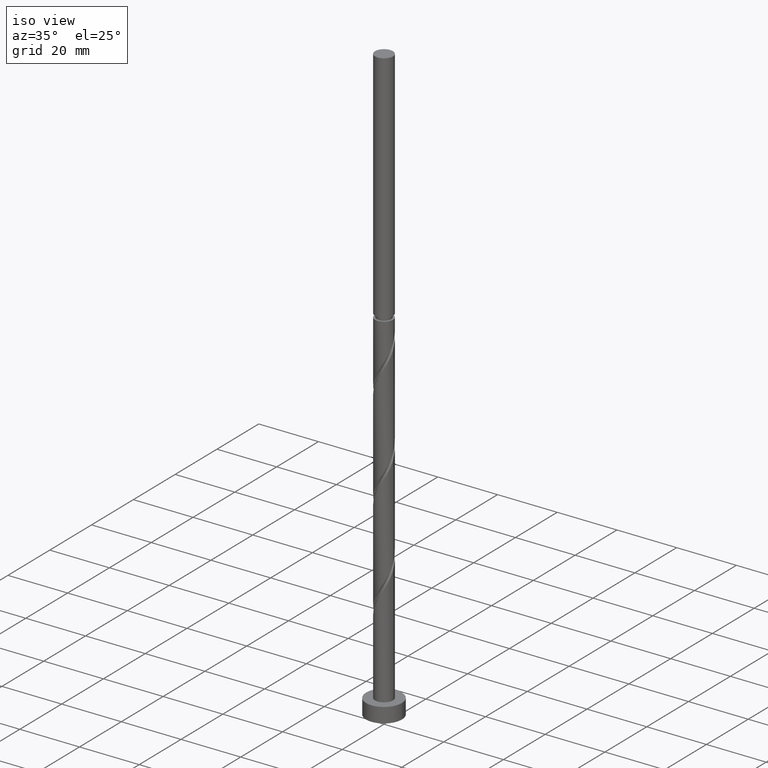
[diagram: clean part render]
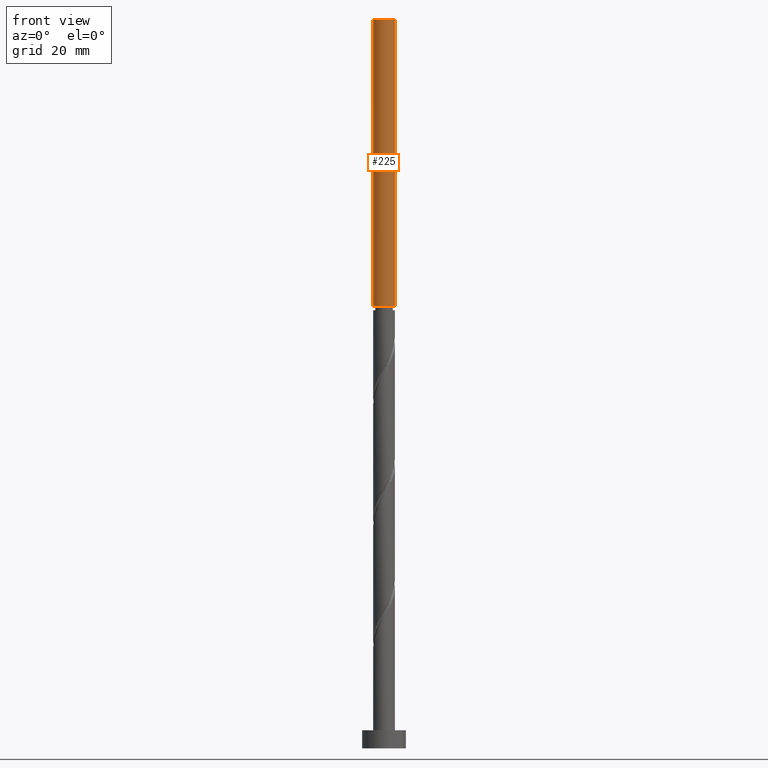
[diagram: tour spotlight — one face highlighted and labeled with its STEP entity id]
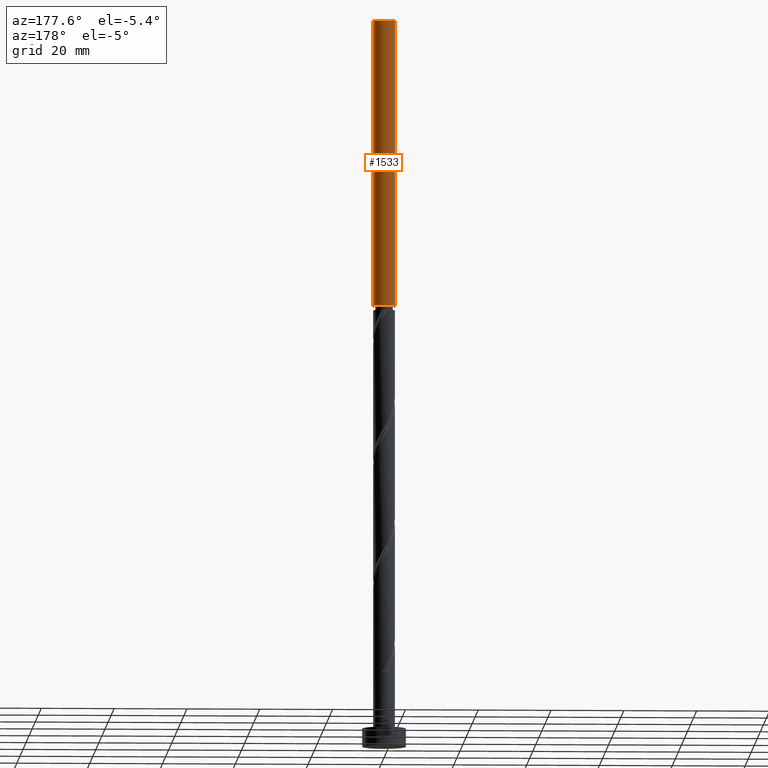
[diagram: tour spotlight — one face highlighted and labeled with its STEP entity id]
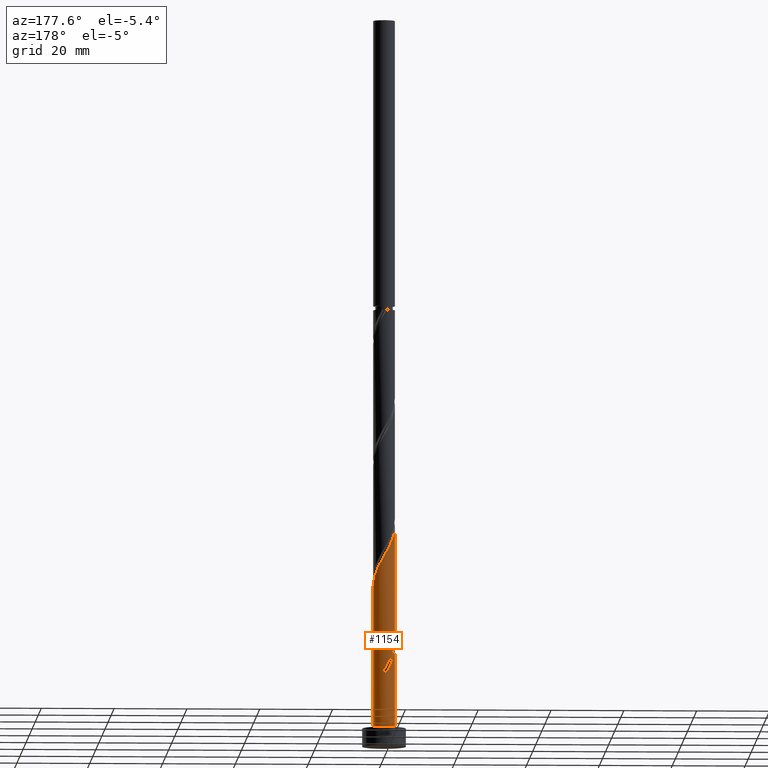
[diagram: tour spotlight — one face highlighted and labeled with its STEP entity id]
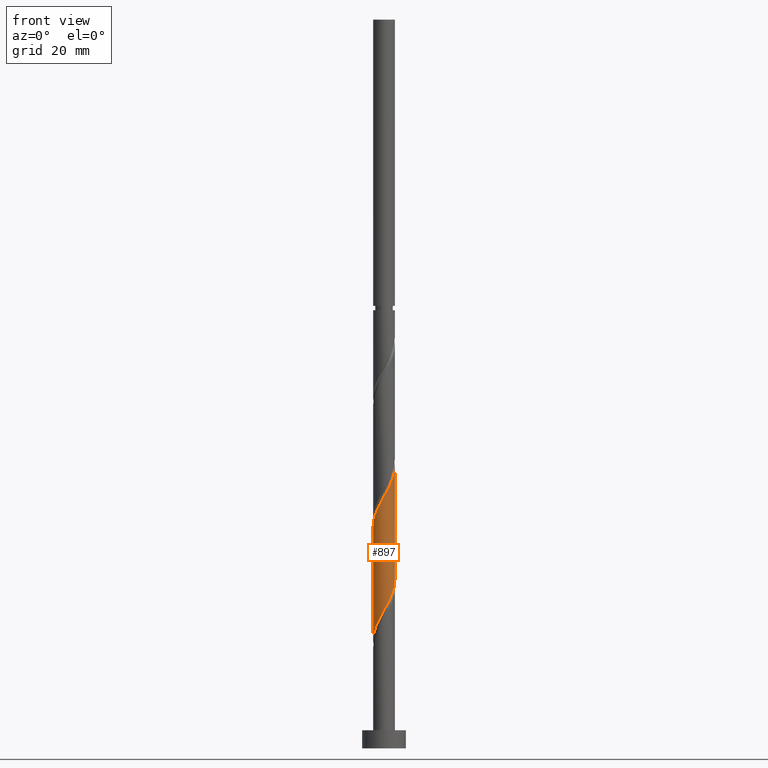
[diagram: tour spotlight — one face highlighted and labeled with its STEP entity id]
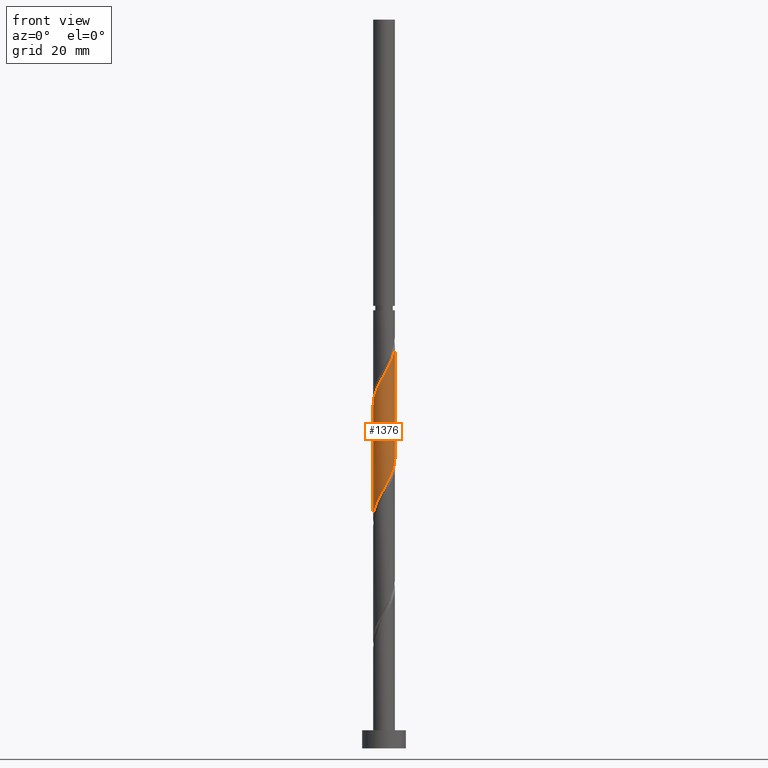
[diagram: tour spotlight — one face highlighted and labeled with its STEP entity id]
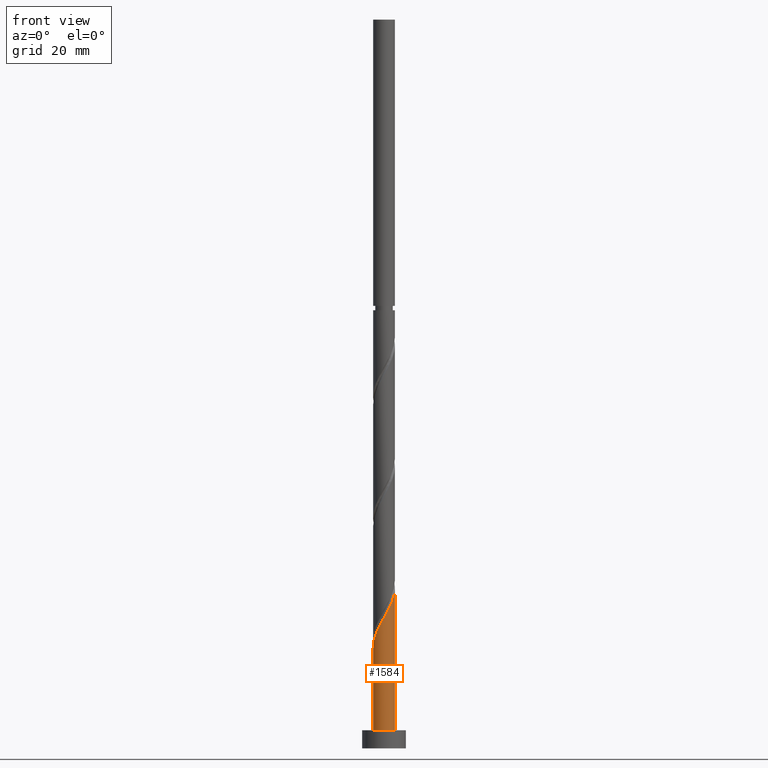
[diagram: tour spotlight — one face highlighted and labeled with its STEP entity id]
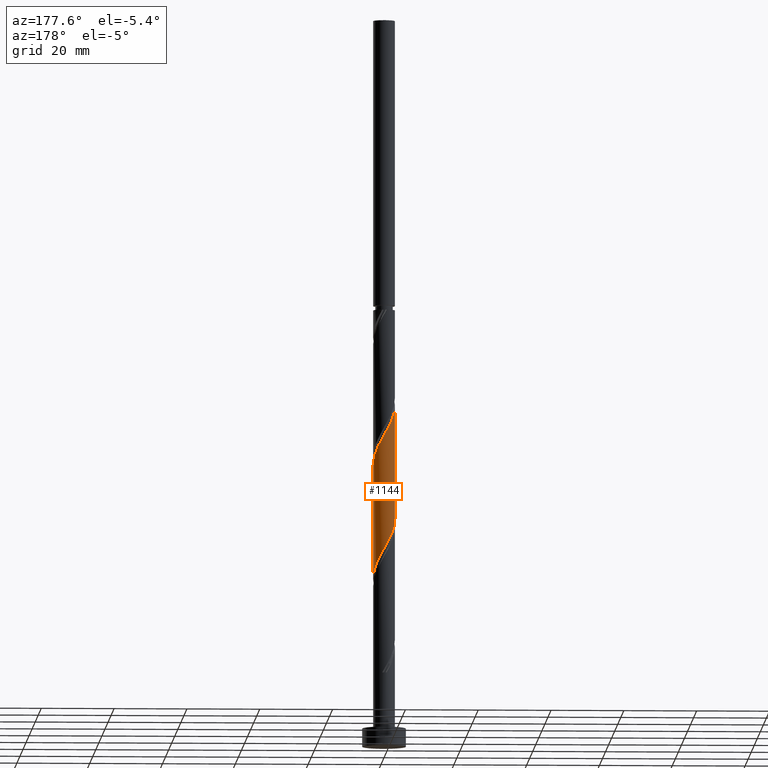
[diagram: tour spotlight — one face highlighted and labeled with its STEP entity id]
A machine part: a face-by-face anatomy tour. The part has 21 B-rep faces; the first image is the clean iso view, then the 7 largest visible faces are spotlighted one at a time (largest first), each with its STEP entity span.

Face 1 — front view, entity #225. In plain terms, the highlighted cylindrical surface (edge-blend (fillet) strip) has radius 3 mm, axis along (-0, -0, -1).
Definition (entity closure, byte-faithful):
#60 = LINE ( 'NONE', #1553, #502 ) ;
#225 = ADVANCED_FACE ( 'NONE', ( #522 ), #1055, .T. ) ;
#259 = CARTESIAN_POINT ( 'NONE',  ( -3.000000000000000444, 0.000000000000000000, 200.0000000000000000 ) ) ;
#283 = EDGE_CURVE ( 'NONE', #513, #817, #491, .T. ) ;
#359 = CARTESIAN_POINT ( 'NONE',  ( 0.000000000000000000, 0.000000000000000000, 200.0000000000000000 ) ) ;
#440 = DIRECTION ( 'NONE',  ( -0.000000000000000000, -0.000000000000000000, -1.000000000000000000 ) ) ;
#463 = DIRECTION ( 'NONE',  ( -0.000000000000000000, -0.000000000000000000, -1.000000000000000000 ) ) ;
#491 = CIRCLE ( 'NONE', #936, 3.000000000000000444 ) ;
#495 = EDGE_CURVE ( 'NONE', #817, #1060, #60, .T. ) ;
#502 = VECTOR ( 'NONE', #591, 1000.000000000000000 ) ;
#513 = VERTEX_POINT ( 'NONE', #1660 ) ;
#519 = ORIENTED_EDGE ( 'NONE', *, *, #875, .T. ) ;
#522 = FACE_OUTER_BOUND ( 'NONE', #576, .T. ) ;
#559 = ORIENTED_EDGE ( 'NONE', *, *, #1118, .F. ) ;
#576 = EDGE_LOOP ( 'NONE', ( #1664, #1331, #519, #559 ) ) ;
#591 = DIRECTION ( 'NONE',  ( -0.000000000000000000, -0.000000000000000000, -1.000000000000000000 ) ) ;
#686 = DIRECTION ( 'NONE',  ( 0.000000000000000000, 0.000000000000000000, 1.000000000000000000 ) ) ;
#704 = CARTESIAN_POINT ( 'NONE',  ( 0.000000000000000000, 0.000000000000000000, 121.4388518206677077 ) ) ;
#817 = VERTEX_POINT ( 'NONE', #896 ) ;
#875 = EDGE_CURVE ( 'NONE', #513, #926, #1212, .T. ) ;
#896 = CARTESIAN_POINT ( 'NONE',  ( 3.000000000000000444, 3.673940397442060361E-16, 200.0000000000000000 ) ) ;
#918 = AXIS2_PLACEMENT_3D ( 'NONE', #704, #440, #972 ) ;
#926 = VERTEX_POINT ( 'NONE', #1319 ) ;
#936 = AXIS2_PLACEMENT_3D ( 'NONE', #1089, #686, #1498 ) ;
#972 = DIRECTION ( 'NONE',  ( -1.000000000000000000, 0.000000000000000000, 0.000000000000000000 ) ) ;
#1055 = CYLINDRICAL_SURFACE ( 'NONE', #1477, 3.000000000000000444 ) ;
#1060 = VERTEX_POINT ( 'NONE', #1406 ) ;
#1089 = CARTESIAN_POINT ( 'NONE',  ( 0.000000000000000000, 0.000000000000000000, 200.0000000000000000 ) ) ;
#1118 = EDGE_CURVE ( 'NONE', #1060, #926, #1428, .T. ) ;
#1212 = LINE ( 'NONE', #259, #1744 ) ;
#1269 = DIRECTION ( 'NONE',  ( -1.000000000000000000, 0.000000000000000000, 0.000000000000000000 ) ) ;
#1319 = CARTESIAN_POINT ( 'NONE',  ( -2.999999999999997780, 0.000000000000000000, 121.4388518206677077 ) ) ;
#1331 = ORIENTED_EDGE ( 'NONE', *, *, #283, .F. ) ;
#1358 = DIRECTION ( 'NONE',  ( -0.000000000000000000, -0.000000000000000000, -1.000000000000000000 ) ) ;
#1406 = CARTESIAN_POINT ( 'NONE',  ( 2.999999999999997780, 3.673940397442058882E-16, 121.4388518206677077 ) ) ;
#1428 = CIRCLE ( 'NONE', #918, 2.999999999999997780 ) ;
#1477 = AXIS2_PLACEMENT_3D ( 'NONE', #359, #463, #1269 ) ;
#1498 = DIRECTION ( 'NONE',  ( 1.000000000000000000, 0.000000000000000000, 0.000000000000000000 ) ) ;
#1553 = CARTESIAN_POINT ( 'NONE',  ( 3.000000000000000444, 3.673940397442060361E-16, 200.0000000000000000 ) ) ;
#1660 = CARTESIAN_POINT ( 'NONE',  ( -3.000000000000000444, 0.000000000000000000, 200.0000000000000000 ) ) ;
#1664 = ORIENTED_EDGE ( 'NONE', *, *, #495, .F. ) ;
#1744 = VECTOR ( 'NONE', #1358, 1000.000000000000000 ) ;

Face 2 — auxiliary view, entity #1533. In plain terms, the highlighted cylindrical surface (edge-blend (fillet) strip) has radius 3 mm, axis along (-0, -0, -1).
Definition (entity closure, byte-faithful):
#51 = CIRCLE ( 'NONE', #1548, 2.999999999999997780 ) ;
#60 = LINE ( 'NONE', #1553, #502 ) ;
#259 = CARTESIAN_POINT ( 'NONE',  ( -3.000000000000000444, 0.000000000000000000, 200.0000000000000000 ) ) ;
#336 = DIRECTION ( 'NONE',  ( 1.000000000000000000, 0.000000000000000000, 0.000000000000000000 ) ) ;
#389 = FACE_OUTER_BOUND ( 'NONE', #568, .T. ) ;
#460 = DIRECTION ( 'NONE',  ( 0.000000000000000000, 0.000000000000000000, 1.000000000000000000 ) ) ;
#495 = EDGE_CURVE ( 'NONE', #817, #1060, #60, .T. ) ;
#502 = VECTOR ( 'NONE', #591, 1000.000000000000000 ) ;
#513 = VERTEX_POINT ( 'NONE', #1660 ) ;
#568 = EDGE_LOOP ( 'NONE', ( #1646, #1458, #1624, #665 ) ) ;
#582 = EDGE_CURVE ( 'NONE', #817, #513, #807, .T. ) ;
#591 = DIRECTION ( 'NONE',  ( -0.000000000000000000, -0.000000000000000000, -1.000000000000000000 ) ) ;
#622 = EDGE_CURVE ( 'NONE', #926, #1060, #51, .T. ) ;
#638 = AXIS2_PLACEMENT_3D ( 'NONE', #911, #669, #652 ) ;
#652 = DIRECTION ( 'NONE',  ( -1.000000000000000000, 0.000000000000000000, 0.000000000000000000 ) ) ;
#665 = ORIENTED_EDGE ( 'NONE', *, *, #875, .F. ) ;
#669 = DIRECTION ( 'NONE',  ( -0.000000000000000000, -0.000000000000000000, -1.000000000000000000 ) ) ;
#807 = CIRCLE ( 'NONE', #1631, 3.000000000000000444 ) ;
#817 = VERTEX_POINT ( 'NONE', #896 ) ;
#864 = DIRECTION ( 'NONE',  ( -1.000000000000000000, 0.000000000000000000, 0.000000000000000000 ) ) ;
#875 = EDGE_CURVE ( 'NONE', #513, #926, #1212, .T. ) ;
#896 = CARTESIAN_POINT ( 'NONE',  ( 3.000000000000000444, 3.673940397442060361E-16, 200.0000000000000000 ) ) ;
#911 = CARTESIAN_POINT ( 'NONE',  ( 0.000000000000000000, 0.000000000000000000, 200.0000000000000000 ) ) ;
#926 = VERTEX_POINT ( 'NONE', #1319 ) ;
#1009 = CARTESIAN_POINT ( 'NONE',  ( 0.000000000000000000, 0.000000000000000000, 121.4388518206677077 ) ) ;
#1057 = CYLINDRICAL_SURFACE ( 'NONE', #638, 3.000000000000000444 ) ;
#1060 = VERTEX_POINT ( 'NONE', #1406 ) ;
#1126 = CARTESIAN_POINT ( 'NONE',  ( 0.000000000000000000, 0.000000000000000000, 200.0000000000000000 ) ) ;
#1212 = LINE ( 'NONE', #259, #1744 ) ;
#1319 = CARTESIAN_POINT ( 'NONE',  ( -2.999999999999997780, 0.000000000000000000, 121.4388518206677077 ) ) ;
#1358 = DIRECTION ( 'NONE',  ( -0.000000000000000000, -0.000000000000000000, -1.000000000000000000 ) ) ;
#1406 = CARTESIAN_POINT ( 'NONE',  ( 2.999999999999997780, 3.673940397442058882E-16, 121.4388518206677077 ) ) ;
#1458 = ORIENTED_EDGE ( 'NONE', *, *, #495, .T. ) ;
#1533 = ADVANCED_FACE ( 'NONE', ( #389 ), #1057, .T. ) ;
#1534 = DIRECTION ( 'NONE',  ( -0.000000000000000000, -0.000000000000000000, -1.000000000000000000 ) ) ;
#1548 = AXIS2_PLACEMENT_3D ( 'NONE', #1009, #1534, #864 ) ;
#1553 = CARTESIAN_POINT ( 'NONE',  ( 3.000000000000000444, 3.673940397442060361E-16, 200.0000000000000000 ) ) ;
#1624 = ORIENTED_EDGE ( 'NONE', *, *, #622, .F. ) ;
#1631 = AXIS2_PLACEMENT_3D ( 'NONE', #1126, #460, #336 ) ;
#1646 = ORIENTED_EDGE ( 'NONE', *, *, #582, .F. ) ;
#1660 = CARTESIAN_POINT ( 'NONE',  ( -3.000000000000000444, 0.000000000000000000, 200.0000000000000000 ) ) ;
#1744 = VECTOR ( 'NONE', #1358, 1000.000000000000000 ) ;

Face 3 — auxiliary view, entity #1154. In plain terms, the highlighted cylindrical surface (edge-blend (fillet) strip) has radius 3 mm, axis along (-0, -0, -1).
Definition (entity closure, byte-faithful):
#21 = EDGE_CURVE ( 'NONE', #1728, #1515, #826, .T. ) ;
#26 = CARTESIAN_POINT ( 'NONE',  ( -2.994334948306429212, 0.1842775552007395179, 27.18329626511215480 ) ) ;
#31 = DIRECTION ( 'NONE',  ( -1.000000000000000000, 0.000000000000000000, 0.000000000000000000 ) ) ;
#90 = CARTESIAN_POINT ( 'NONE',  ( -2.844610918258240417, 0.9529893618115794496, 59.12774070955659766 ) ) ;
#91 = DIRECTION ( 'NONE',  ( -0.000000000000000000, -0.000000000000000000, -1.000000000000000000 ) ) ;
#137 = CARTESIAN_POINT ( 'NONE',  ( 3.000000000000000444, 3.673940397442060361E-16, 5.000000000000000000 ) ) ;
#143 = CARTESIAN_POINT ( 'NONE',  ( -0.5969924622639721790, 2.940000000000004832, 20.23885182066770128 ) ) ;
#154 = CARTESIAN_POINT ( 'NONE',  ( -2.939999999999999947, 0.5969924622639726230, 28.57218515400104053 ) ) ;
#157 = CARTESIAN_POINT ( 'NONE',  ( -1.987010638188426048, 2.247618455994266906, 23.01662959844548340 ) ) ;
#165 = AXIS2_PLACEMENT_3D ( 'NONE', #333, #1238, #31 ) ;
#174 = DIRECTION ( 'NONE',  ( 0.000000000000000000, -0.000000000000000000, -1.000000000000000000 ) ) ;
#181 = CIRCLE ( 'NONE', #1165, 3.000000000000000444 ) ;
#210 = CARTESIAN_POINT ( 'NONE',  ( -3.000000000000004441, -1.555193582136498495E-15, 60.84195183212430180 ) ) ;
#216 = CARTESIAN_POINT ( 'NONE',  ( 1.656756518304344450, 2.501031355072561357, 49.40551848733436913 ) ) ;
#224 = CARTESIAN_POINT ( 'NONE',  ( 3.000000000000004885, 0.3015113445777639622, 44.70871153464690195 ) ) ;
#232 = CARTESIAN_POINT ( 'NONE',  ( 0.5784892297585080279, 2.970074347914953172, 51.48885182066768351 ) ) ;
#288 = CARTESIAN_POINT ( 'NONE',  ( -2.509213369244495340, 1.691106054833252159, 26.48885182066771193 ) ) ;
#292 = EDGE_CURVE ( 'NONE', #365, #1636, #181, .T. ) ;
#309 = DIRECTION ( 'NONE',  ( -0.000000000000000000, -0.000000000000000000, -1.000000000000000000 ) ) ;
#317 = CARTESIAN_POINT ( 'NONE',  ( 0.5969924622639731782, 2.939999999999999947, 20.23885182066769772 ) ) ;
#325 = FACE_OUTER_BOUND ( 'NONE', #1216, .T. ) ;
#333 = CARTESIAN_POINT ( 'NONE',  ( 0.000000000000000000, 0.000000000000000000, 200.0000000000000000 ) ) ;
#351 = CARTESIAN_POINT ( 'NONE',  ( -2.970074347914953172, 0.5784892297585065846, 59.82218515400103342 ) ) ;
#365 = VERTEX_POINT ( 'NONE', #137 ) ;
#367 = CARTESIAN_POINT ( 'NONE',  ( -2.501031355072563134, 1.656756518304344006, 57.73885182066769772 ) ) ;
#374 = CARTESIAN_POINT ( 'NONE',  ( 1.327489493864653092, 2.719147488601527218, 50.09996293177880489 ) ) ;
#381 = CARTESIAN_POINT ( 'NONE',  ( -1.691106054833254158, 2.509213369244499336, 55.65551848733434781 ) ) ;
#385 = EDGE_CURVE ( 'NONE', #919, #1036, #1287, .T. ) ;
#394 = CARTESIAN_POINT ( 'NONE',  ( -0.5784892297585048082, 2.970074347914948287, 22.32218515400104053 ) ) ;
#396 = LINE ( 'NONE', #927, #477 ) ;
#401 = CARTESIAN_POINT ( 'NONE',  ( -2.861404451302098639, 0.9840508051709164761, 27.87774070955658345 ) ) ;
#409 = EDGE_CURVE ( 'NONE', #648, #365, #396, .T. ) ;
#410 = CARTESIAN_POINT ( 'NONE',  ( -2.247618455994263353, 1.987010638188423606, 25.79440737622326552 ) ) ;
#421 = EDGE_CURVE ( 'NONE', #919, #1597, #451, .T. ) ;
#431 = CARTESIAN_POINT ( 'NONE',  ( -1.656756518304341119, 2.501031355072559581, 24.40551848733437268 ) ) ;
#442 = CARTESIAN_POINT ( 'NONE',  ( 0.000000000000000000, 0.000000000000000000, 20.23885182066770128 ) ) ;
#451 = CIRCLE ( 'NONE', #1690, 3.000000000000000444 ) ;
#466 = CYLINDRICAL_SURFACE ( 'NONE', #165, 3.000000000000000444 ) ;
#467 = VECTOR ( 'NONE', #91, 1000.000000000000000 ) ;
#477 = VECTOR ( 'NONE', #309, 1000.000000000000000 ) ;
#484 = CARTESIAN_POINT ( 'NONE',  ( -0.2099341193570253283, 3.018595548697905695, 52.87774070955658345 ) ) ;
#537 = CARTESIAN_POINT ( 'NONE',  ( -3.000000000000000444, -5.263732124154341557E-15, 29.63575180921111496 ) ) ;
#613 = ORIENTED_EDGE ( 'NONE', *, *, #21, .F. ) ;
#629 = CARTESIAN_POINT ( 'NONE',  ( 2.247618455994269127, 1.987010638188424050, 48.01662959844546208 ) ) ;
#647 = CARTESIAN_POINT ( 'NONE',  ( 2.509213369244500225, 1.691106054833252159, 47.32218515400103342 ) ) ;
#648 = VERTEX_POINT ( 'NONE', #1680 ) ;
#676 = CARTESIAN_POINT ( 'NONE',  ( -2.970074347914953172, 0.5784892297585065846, 26.48885182066770838 ) ) ;
#677 = EDGE_CURVE ( 'NONE', #1036, #1636, #1688, .T. ) ;
#695 = CARTESIAN_POINT ( 'NONE',  ( -2.282915221543597717, 1.986023542744035808, 23.71107404288991916 ) ) ;
#716 = CARTESIAN_POINT ( 'NONE',  ( -3.000000000000000444, 0.000000000000000000, 5.000000000000000000 ) ) ;
#722 = DIRECTION ( 'NONE',  ( -0.000000000000000000, -0.000000000000000000, -1.000000000000000000 ) ) ;
#743 =( BOUNDED_CURVE ( )  B_SPLINE_CURVE ( 2, ( #537, #1495, #154, #401, #1476, #288, #410, #1096, #431, #1457, #1602, #394, #924, #1686, #317 ),
 .UNSPECIFIED., .F., .T. ) 
 B_SPLINE_CURVE_WITH_KNOTS ( ( 3, 2, 2, 2, 2, 2, 2, 3 ),
 ( 0.9295317669814462391, 0.9375000000000000000, 0.9479166666666666297, 0.9583333333333333703, 0.9687500000000000000, 0.9791666666666666297, 0.9895833333333333703, 1.000000000000000000 ),
 .UNSPECIFIED. ) 
 CURVE ( )  GEOMETRIC_REPRESENTATION_ITEM ( )  RATIONAL_B_SPLINE_CURVE ( ( 0.9062941362546322877, 0.9031415850403365919, 0.9090909090909118362, 0.9013135103398304260, 0.9090909090909118362, 0.9013135103398304260, 0.9090909090909118362, 0.9013135103398304260, 0.9090909090909118362, 0.9013135103398304260, 0.9090909090909118362, 0.9013135103398304260, 0.9090909090909118362, 0.9013135103398304260, 0.9090909090909118362 ) ) 
 REPRESENTATION_ITEM ( '' )  );
#755 = CARTESIAN_POINT ( 'NONE',  ( 0.9529893618115802267, 2.844610918258239973, 50.79440737622326907 ) ) ;
#762 = CARTESIAN_POINT ( 'NONE',  ( -0.5969924622639720679, 2.940000000000003944, 53.57218515400102632 ) ) ;
#773 = EDGE_CURVE ( 'NONE', #648, #1728, #1470, .T. ) ;
#796 = CARTESIAN_POINT ( 'NONE',  ( -1.691106054833254158, 2.509213369244499336, 22.32218515400104053 ) ) ;
#806 = CARTESIAN_POINT ( 'NONE',  ( -2.719147488601527218, 1.327489493864651759, 25.09996293177880489 ) ) ;
#826 = LINE ( 'NONE', #1363, #467 ) ;
#872 = CARTESIAN_POINT ( 'NONE',  ( -3.000000000000000444, 0.000000000000000000, 200.0000000000000000 ) ) ;
#906 = CARTESIAN_POINT ( 'NONE',  ( 0.1842775552007413498, 2.994334948306429212, 52.18329626511214059 ) ) ;
#914 = CARTESIAN_POINT ( 'NONE',  ( -3.000000000000004885, 0.09222585497302213109, 60.67878814409616695 ) ) ;
#919 = VERTEX_POINT ( 'NONE', #143 ) ;
#924 = CARTESIAN_POINT ( 'NONE',  ( -0.1842775552007380191, 2.994334948306426547, 21.62774070955659056 ) ) ;
#927 = CARTESIAN_POINT ( 'NONE',  ( 3.000000000000000444, 3.673940397442060361E-16, 200.0000000000000000 ) ) ;
#955 = CARTESIAN_POINT ( 'NONE',  ( -0.5969924622639721790, 2.940000000000004832, 20.23885182066770128 ) ) ;
#968 = ORIENTED_EDGE ( 'NONE', *, *, #991, .F. ) ;
#991 = EDGE_CURVE ( 'NONE', #1515, #1597, #743, .T. ) ;
#1017 = CARTESIAN_POINT ( 'NONE',  ( -1.987010638188426048, 2.247618455994266906, 56.34996293177879778 ) ) ;
#1023 = CARTESIAN_POINT ( 'NONE',  ( -2.994334948306429212, 0.1842775552007395179, 60.51662959844548340 ) ) ;
#1036 = VERTEX_POINT ( 'NONE', #1394 ) ;
#1042 = CARTESIAN_POINT ( 'NONE',  ( 3.000000000000004441, -3.588908266468843023E-16, 44.17528516545764461 ) ) ;
#1043 = ORIENTED_EDGE ( 'NONE', *, *, #292, .T. ) ;
#1051 = CARTESIAN_POINT ( 'NONE',  ( -1.337578430002085428, 2.685308910273301208, 54.96107404288991916 ) ) ;
#1062 = CARTESIAN_POINT ( 'NONE',  ( -3.000000000000004441, -1.555193582136498495E-15, 27.50861849879098031 ) ) ;
#1096 = CARTESIAN_POINT ( 'NONE',  ( -1.986023542744032477, 2.282915221543594608, 25.09996293177880844 ) ) ;
#1110 = ORIENTED_EDGE ( 'NONE', *, *, #677, .F. ) ;
#1120 = ORIENTED_EDGE ( 'NONE', *, *, #409, .T. ) ;
#1154 = ADVANCED_FACE ( 'NONE', ( #325 ), #466, .T. ) ;
#1165 = AXIS2_PLACEMENT_3D ( 'NONE', #1469, #1215, #1329 ) ;
#1185 = CARTESIAN_POINT ( 'NONE',  ( -0.9840508051709171422, 2.861404451302103080, 54.26662959844546208 ) ) ;
#1195 = ORIENTED_EDGE ( 'NONE', *, *, #773, .F. ) ;
#1215 = DIRECTION ( 'NONE',  ( 0.000000000000000000, 0.000000000000000000, 1.000000000000000000 ) ) ;
#1216 = EDGE_LOOP ( 'NONE', ( #1195, #1120, #1043, #1110, #1492, #1587, #968, #613 ) ) ;
#1233 = CARTESIAN_POINT ( 'NONE',  ( -2.844610918258240417, 0.9529893618115794496, 25.79440737622325841 ) ) ;
#1238 = DIRECTION ( 'NONE',  ( -0.000000000000000000, -0.000000000000000000, -1.000000000000000000 ) ) ;
#1287 =( BOUNDED_CURVE ( )  B_SPLINE_CURVE ( 2, ( #955, #1361, #1739, #796, #157, #695, #1480, #806, #1233, #676, #26, #1642, #1062 ),
 .UNSPECIFIED., .F., .T. ) 
 B_SPLINE_CURVE_WITH_KNOTS ( ( 3, 2, 2, 2, 2, 2, 3 ),
 ( 0.000000000000000000, 0.01041666666666662966, 0.02083333333333337034, 0.03125000000000000000, 0.04166666666666662966, 0.05208333333333337034, 0.05453176698144632933 ),
 .UNSPECIFIED. ) 
 CURVE ( )  GEOMETRIC_REPRESENTATION_ITEM ( )  RATIONAL_B_SPLINE_CURVE ( ( 0.9090909090909184975, 0.9013135103398369763, 0.9090909090909184975, 0.9013135103398369763, 0.9090909090909184975, 0.9013135103398369763, 0.9090909090909184975, 0.9013135103398369763, 0.9090909090909184975, 0.9013135103398369763, 0.9090909090909184975, 0.9072628343904122206, 0.9062941362546388380 ) ) 
 REPRESENTATION_ITEM ( '' )  );
#1294 = CARTESIAN_POINT ( 'NONE',  ( -2.282915221543597717, 1.986023542744035808, 57.04440737622325486 ) ) ;
#1329 = DIRECTION ( 'NONE',  ( 1.000000000000000000, 0.000000000000000000, 0.000000000000000000 ) ) ;
#1361 = CARTESIAN_POINT ( 'NONE',  ( -0.9840508051709171422, 2.861404451302103080, 20.93329626511214414 ) ) ;
#1363 = CARTESIAN_POINT ( 'NONE',  ( -3.000000000000000444, 0.000000000000000000, 200.0000000000000000 ) ) ;
#1394 = CARTESIAN_POINT ( 'NONE',  ( -3.000000000000004885, -1.555193582136498495E-15, 27.50861849879098386 ) ) ;
#1453 = CARTESIAN_POINT ( 'NONE',  ( -3.000000000000000444, -5.263732124154340768E-15, 29.63575180921111496 ) ) ;
#1456 = VECTOR ( 'NONE', #722, 1000.000000000000000 ) ;
#1457 = CARTESIAN_POINT ( 'NONE',  ( -1.327489493864648873, 2.719147488601523222, 23.71107404288992981 ) ) ;
#1469 = CARTESIAN_POINT ( 'NONE',  ( 0.000000000000000000, 0.000000000000000000, 5.000000000000000000 ) ) ;
#1470 =( BOUNDED_CURVE ( )  B_SPLINE_CURVE ( 2, ( #1042, #224, #1593, #1583, #1695, #647, #629, #1727, #216, #374, #755, #232, #906, #484, #762, #1185, #1051, #381, #1017, #1294, #367, #1559, #90, #351, #1023, #914, #210 ),
 .UNSPECIFIED., .F., .T. ) 
 B_SPLINE_CURVE_WITH_KNOTS ( ( 3, 2, 2, 2, 2, 2, 2, 2, 2, 2, 2, 2, 2, 3 ),
 ( 0.1795317669814463779, 0.1875000000000000000, 0.1979166666666666297, 0.2083333333333333703, 0.2187500000000000000, 0.2291666666666666297, 0.2395833333333333703, 0.2500000000000000000, 0.2604166666666666297, 0.2708333333333333703, 0.2812500000000000000, 0.2916666666666666297, 0.3020833333333333703, 0.3045317669814462946 ),
 .UNSPECIFIED. ) 
 CURVE ( )  GEOMETRIC_REPRESENTATION_ITEM ( )  RATIONAL_B_SPLINE_CURVE ( ( 0.9062941362546388380, 0.9031415850403432533, 0.9090909090909184975, 0.9013135103398369763, 0.9090909090909184975, 0.9013135103398369763, 0.9090909090909184975, 0.9013135103398369763, 0.9090909090909184975, 0.9013135103398369763, 0.9090909090909184975, 0.9013135103398369763, 0.9090909090909184975, 0.9013135103398369763, 0.9090909090909184975, 0.9013135103398369763, 0.9090909090909184975, 0.9013135103398369763, 0.9090909090909184975, 0.9013135103398369763, 0.9090909090909184975, 0.9013135103398369763, 0.9090909090909184975, 0.9013135103398369763, 0.9090909090909184975, 0.9072628343904122206, 0.9062941362546388380 ) ) 
 REPRESENTATION_ITEM ( '' )  );
#1476 = CARTESIAN_POINT ( 'NONE',  ( -2.685308910273297212, 1.337578430002084540, 27.18329626511214414 ) ) ;
#1480 = CARTESIAN_POINT ( 'NONE',  ( -2.501031355072563134, 1.656756518304344006, 24.40551848733436557 ) ) ;
#1492 = ORIENTED_EDGE ( 'NONE', *, *, #385, .F. ) ;
#1495 = CARTESIAN_POINT ( 'NONE',  ( -3.000000000000001776, 0.3015113445777616308, 29.10232544002183630 ) ) ;
#1515 = VERTEX_POINT ( 'NONE', #1453 ) ;
#1524 = DIRECTION ( 'NONE',  ( -1.000000000000000000, 0.000000000000000000, 0.000000000000000000 ) ) ;
#1538 = CARTESIAN_POINT ( 'NONE',  ( -3.000000000000004885, -1.555193582136498495E-15, 60.84195183212430180 ) ) ;
#1559 = CARTESIAN_POINT ( 'NONE',  ( -2.719147488601527218, 1.327489493864651759, 58.43329626511213348 ) ) ;
#1583 = CARTESIAN_POINT ( 'NONE',  ( 2.861404451302104412, 0.9840508051709164761, 45.93329626511215480 ) ) ;
#1587 = ORIENTED_EDGE ( 'NONE', *, *, #421, .T. ) ;
#1593 = CARTESIAN_POINT ( 'NONE',  ( 2.940000000000003944, 0.5969924622639724010, 45.23885182066769772 ) ) ;
#1597 = VERTEX_POINT ( 'NONE', #1751 ) ;
#1602 = CARTESIAN_POINT ( 'NONE',  ( -0.9529893618115768961, 2.844610918258235532, 23.01662959844549050 ) ) ;
#1636 = VERTEX_POINT ( 'NONE', #716 ) ;
#1642 = CARTESIAN_POINT ( 'NONE',  ( -3.000000000000004885, 0.09222585497302084045, 27.34545481076283124 ) ) ;
#1680 = CARTESIAN_POINT ( 'NONE',  ( 3.000000000000004885, -3.588908266468843023E-16, 44.17528516545764461 ) ) ;
#1686 = CARTESIAN_POINT ( 'NONE',  ( 0.2099341193570286590, 3.018595548697901254, 20.93329626511214059 ) ) ;
#1688 = LINE ( 'NONE', #872, #1456 ) ;
#1690 = AXIS2_PLACEMENT_3D ( 'NONE', #442, #174, #1524 ) ;
#1695 = CARTESIAN_POINT ( 'NONE',  ( 2.685308910273301652, 1.337578430002084318, 46.62774070955658345 ) ) ;
#1727 = CARTESIAN_POINT ( 'NONE',  ( 1.986023542744038028, 2.282915221543595941, 48.71107404288990494 ) ) ;
#1728 = VERTEX_POINT ( 'NONE', #1538 ) ;
#1739 = CARTESIAN_POINT ( 'NONE',  ( -1.337578430002085428, 2.685308910273301208, 21.62774070955657990 ) ) ;
#1751 = CARTESIAN_POINT ( 'NONE',  ( 0.5969924622639731782, 2.939999999999999947, 20.23885182066770128 ) ) ;

Face 4 — front view, entity #897. In plain terms, the highlighted cylindrical surface (edge-blend (fillet) strip) has radius 3 mm, axis along (-0, -0, -1).
Definition (entity closure, byte-faithful):
#6 = CARTESIAN_POINT ( 'NONE',  ( 0.5784892297585031429, -2.970074347914949175, 38.98885182066769772 ) ) ;
#7 = VERTEX_POINT ( 'NONE', #959 ) ;
#21 = EDGE_CURVE ( 'NONE', #1728, #1515, #826, .T. ) ;
#22 = FACE_OUTER_BOUND ( 'NONE', #158, .T. ) ;
#77 = CARTESIAN_POINT ( 'NONE',  ( -1.327489493864652648, -2.719147488601527218, 66.76662959844546208 ) ) ;
#85 = CARTESIAN_POINT ( 'NONE',  ( 1.337578430002084318, -2.685308910273301652, 71.62774070955659056 ) ) ;
#91 = DIRECTION ( 'NONE',  ( -0.000000000000000000, -0.000000000000000000, -1.000000000000000000 ) ) ;
#108 = CARTESIAN_POINT ( 'NONE',  ( -2.247618455994266906, -1.987010638188425604, 64.68329626511214769 ) ) ;
#117 = ORIENTED_EDGE ( 'NONE', *, *, #956, .F. ) ;
#127 = CARTESIAN_POINT ( 'NONE',  ( -2.501031355072559581, -1.656756518304340897, 32.73885182066770483 ) ) ;
#146 = CARTESIAN_POINT ( 'NONE',  ( 2.939999999999999947, -0.5969924622639729561, 45.23885182066771193 ) ) ;
#158 = EDGE_LOOP ( 'NONE', ( #117, #1227, #1101, #170 ) ) ;
#166 = CARTESIAN_POINT ( 'NONE',  ( 1.986023542744032033, -2.282915221543595052, 41.76662959844549761 ) ) ;
#170 = ORIENTED_EDGE ( 'NONE', *, *, #316, .F. ) ;
#187 = VERTEX_POINT ( 'NONE', #1683 ) ;
#262 = CARTESIAN_POINT ( 'NONE',  ( -1.987010638188424050, -2.247618455994263353, 34.12774070955659056 ) ) ;
#268 = CYLINDRICAL_SURFACE ( 'NONE', #1369, 3.000000000000000444 ) ;
#282 = CARTESIAN_POINT ( 'NONE',  ( -2.970074347914949175, -0.5784892297585036980, 30.65551848733436557 ) ) ;
#291 = CARTESIAN_POINT ( 'NONE',  ( 3.000000000000001776, -0.3015113445777619083, 45.76899210668850770 ) ) ;
#300 = CARTESIAN_POINT ( 'NONE',  ( 2.861404451302097751, -0.9840508051709188075, 44.54440737622324065 ) ) ;
#316 = EDGE_CURVE ( 'NONE', #187, #1515, #390, .T. ) ;
#358 = CARTESIAN_POINT ( 'NONE',  ( 2.970074347914953172, -0.5784892297585080279, 76.48885182066767641 ) ) ;
#390 =( BOUNDED_CURVE ( )  B_SPLINE_CURVE ( 2, ( #946, #291, #146, #300, #434, #830, #1099, #166, #1614, #1633, #548, #6, #1339, #413, #424, #1623, #1368, #815, #262, #1489, #127, #666, #1206, #282, #1748, #1350, #823 ),
 .UNSPECIFIED., .F., .T. ) 
 B_SPLINE_CURVE_WITH_KNOTS ( ( 3, 2, 2, 2, 2, 2, 2, 2, 2, 2, 2, 2, 2, 3 ),
 ( 0.8045317669814462391, 0.8125000000000000000, 0.8229166666666666297, 0.8333333333333333703, 0.8437500000000000000, 0.8541666666666666297, 0.8645833333333333703, 0.8750000000000000000, 0.8854166666666666297, 0.8958333333333333703, 0.9062500000000000000, 0.9166666666666666297, 0.9270833333333333703, 0.9295317669814462391 ),
 .UNSPECIFIED. ) 
 CURVE ( )  GEOMETRIC_REPRESENTATION_ITEM ( )  RATIONAL_B_SPLINE_CURVE ( ( 0.9062941362546322877, 0.9031415850403365919, 0.9090909090909118362, 0.9013135103398304260, 0.9090909090909118362, 0.9013135103398304260, 0.9090909090909118362, 0.9013135103398304260, 0.9090909090909118362, 0.9013135103398304260, 0.9090909090909118362, 0.9013135103398304260, 0.9090909090909118362, 0.9013135103398304260, 0.9090909090909118362, 0.9013135103398304260, 0.9090909090909118362, 0.9013135103398304260, 0.9090909090909118362, 0.9013135103398304260, 0.9090909090909118362, 0.9013135103398304260, 0.9090909090909118362, 0.9013135103398304260, 0.9090909090909118362, 0.9072628343904056702, 0.9062941362546322877 ) ) 
 REPRESENTATION_ITEM ( '' )  );
#413 = CARTESIAN_POINT ( 'NONE',  ( -0.2099341193570294639, -3.018595548697902586, 37.59996293177880489 ) ) ;
#420 = CARTESIAN_POINT ( 'NONE',  ( 3.000000000000000444, 3.673940397442060361E-16, 200.0000000000000000 ) ) ;
#424 = CARTESIAN_POINT ( 'NONE',  ( -0.5969924622639728451, -2.939999999999999947, 36.90551848733437623 ) ) ;
#434 = CARTESIAN_POINT ( 'NONE',  ( 2.685308910273296767, -1.337578430002086316, 43.84996293177881910 ) ) ;
#467 = VECTOR ( 'NONE', #91, 1000.000000000000000 ) ;
#490 = CARTESIAN_POINT ( 'NONE',  ( 2.719147488601527218, -1.327489493864652648, 75.09996293177881910 ) ) ;
#499 = CARTESIAN_POINT ( 'NONE',  ( 0.2099341193570272157, -3.018595548697905695, 69.54440737622326196 ) ) ;
#518 = CARTESIAN_POINT ( 'NONE',  ( -1.656756518304344006, -2.501031355072561801, 66.07218515400103342 ) ) ;
#527 = DIRECTION ( 'NONE',  ( -0.000000000000000000, -0.000000000000000000, -1.000000000000000000 ) ) ;
#545 = LINE ( 'NONE', #420, #699 ) ;
#548 = CARTESIAN_POINT ( 'NONE',  ( 0.9529893618115763410, -2.844610918258235976, 39.68329626511214769 ) ) ;
#615 = CARTESIAN_POINT ( 'NONE',  ( 0.5969924622639724010, -2.940000000000003944, 70.23885182066767641 ) ) ;
#621 = CARTESIAN_POINT ( 'NONE',  ( 1.691106054833252603, -2.509213369244500225, 72.32218515400107606 ) ) ;
#636 = CARTESIAN_POINT ( 'NONE',  ( -2.509213369244499336, -1.691106054833253269, 63.98885182066770483 ) ) ;
#666 = CARTESIAN_POINT ( 'NONE',  ( -2.719147488601523666, -1.327489493864647985, 32.04440737622325486 ) ) ;
#699 = VECTOR ( 'NONE', #527, 1000.000000000000000 ) ;
#769 = CARTESIAN_POINT ( 'NONE',  ( 1.987010638188424938, -2.247618455994267794, 73.01662959844549050 ) ) ;
#794 = DIRECTION ( 'NONE',  ( -1.000000000000000000, 0.000000000000000000, 0.000000000000000000 ) ) ;
#802 = EDGE_CURVE ( 'NONE', #1728, #7, #985, .T. ) ;
#815 = CARTESIAN_POINT ( 'NONE',  ( -1.691106054833252159, -2.509213369244495340, 34.82218515400104764 ) ) ;
#823 = CARTESIAN_POINT ( 'NONE',  ( -3.000000000000000444, -5.263732124154341557E-15, 29.63575180921111496 ) ) ;
#826 = LINE ( 'NONE', #1363, #467 ) ;
#830 = CARTESIAN_POINT ( 'NONE',  ( 2.509213369244494007, -1.691106054833253269, 43.15551848733437623 ) ) ;
#880 = CARTESIAN_POINT ( 'NONE',  ( -3.000000000000004441, -1.555193582136498495E-15, 60.84195183212430180 ) ) ;
#886 = CARTESIAN_POINT ( 'NONE',  ( 2.994334948306429212, -0.1842775552007412943, 77.18329626511216190 ) ) ;
#897 = ADVANCED_FACE ( 'NONE', ( #22 ), #268, .T. ) ;
#946 = CARTESIAN_POINT ( 'NONE',  ( 3.000000000000000444, 4.560904255304187567E-15, 46.30241847587777215 ) ) ;
#956 = EDGE_CURVE ( 'NONE', #7, #187, #545, .T. ) ;
#959 = CARTESIAN_POINT ( 'NONE',  ( 3.000000000000004885, -3.588908266468843023E-16, 77.50861849879096610 ) ) ;
#985 =( BOUNDED_CURVE ( )  B_SPLINE_CURVE ( 2, ( #880, #1708, #1311, #1302, #1289, #636, #108, #1447, #518, #77, #1153, #1169, #1282, #499, #615, #1423, #85, #621, #769, #1159, #1702, #490, #1565, #358, #886, #1032, #1575 ),
 .UNSPECIFIED., .F., .T. ) 
 B_SPLINE_CURVE_WITH_KNOTS ( ( 3, 2, 2, 2, 2, 2, 2, 2, 2, 2, 2, 2, 2, 3 ),
 ( 0.3045317669814462946, 0.3125000000000000000, 0.3229166666666666297, 0.3333333333333333703, 0.3437500000000000000, 0.3541666666666666297, 0.3645833333333333703, 0.3750000000000000000, 0.3854166666666666297, 0.3958333333333333703, 0.4062500000000000000, 0.4166666666666666297, 0.4270833333333333703, 0.4295317669814464057 ),
 .UNSPECIFIED. ) 
 CURVE ( )  GEOMETRIC_REPRESENTATION_ITEM ( )  RATIONAL_B_SPLINE_CURVE ( ( 0.9062941362546388380, 0.9031415850403431422, 0.9090909090909184975, 0.9013135103398369763, 0.9090909090909184975, 0.9013135103398369763, 0.9090909090909184975, 0.9013135103398369763, 0.9090909090909184975, 0.9013135103398369763, 0.9090909090909184975, 0.9013135103398369763, 0.9090909090909184975, 0.9013135103398369763, 0.9090909090909184975, 0.9013135103398369763, 0.9090909090909184975, 0.9013135103398369763, 0.9090909090909184975, 0.9013135103398369763, 0.9090909090909184975, 0.9013135103398369763, 0.9090909090909184975, 0.9013135103398369763, 0.9090909090909184975, 0.9072628343904121095, 0.9062941362546386159 ) ) 
 REPRESENTATION_ITEM ( '' )  );
#1032 = CARTESIAN_POINT ( 'NONE',  ( 3.000000000000004441, -0.09222585497301985513, 77.34545481076284545 ) ) ;
#1069 = CARTESIAN_POINT ( 'NONE',  ( 0.000000000000000000, 0.000000000000000000, 200.0000000000000000 ) ) ;
#1099 = CARTESIAN_POINT ( 'NONE',  ( 2.247618455994263353, -1.987010638188424494, 42.46107404288992626 ) ) ;
#1101 = ORIENTED_EDGE ( 'NONE', *, *, #21, .T. ) ;
#1153 = CARTESIAN_POINT ( 'NONE',  ( -0.9529893618115800047, -2.844610918258240417, 67.46107404288991916 ) ) ;
#1159 = CARTESIAN_POINT ( 'NONE',  ( 2.282915221543596829, -1.986023542744036252, 73.71107404288993337 ) ) ;
#1169 = CARTESIAN_POINT ( 'NONE',  ( -0.5784892297585065846, -2.970074347914953172, 68.15551848733434781 ) ) ;
#1204 = DIRECTION ( 'NONE',  ( -0.000000000000000000, -0.000000000000000000, -1.000000000000000000 ) ) ;
#1206 = CARTESIAN_POINT ( 'NONE',  ( -2.844610918258235532, -0.9529893618115765630, 31.34996293177881554 ) ) ;
#1227 = ORIENTED_EDGE ( 'NONE', *, *, #802, .F. ) ;
#1282 = CARTESIAN_POINT ( 'NONE',  ( -0.1842775552007396012, -2.994334948306429212, 68.84996293177877646 ) ) ;
#1289 = CARTESIAN_POINT ( 'NONE',  ( -2.685308910273301208, -1.337578430002085206, 63.29440737622325486 ) ) ;
#1302 = CARTESIAN_POINT ( 'NONE',  ( -2.861404451302104412, -0.9840508051709166981, 62.59996293177880489 ) ) ;
#1311 = CARTESIAN_POINT ( 'NONE',  ( -2.940000000000003944, -0.5969924622639726230, 61.90551848733436913 ) ) ;
#1339 = CARTESIAN_POINT ( 'NONE',  ( 0.1842775552007368534, -2.994334948306425659, 38.29440737622326907 ) ) ;
#1350 = CARTESIAN_POINT ( 'NONE',  ( -3.000000000000000888, -0.09222585497302251967, 29.79891549723926758 ) ) ;
#1363 = CARTESIAN_POINT ( 'NONE',  ( -3.000000000000000444, 0.000000000000000000, 200.0000000000000000 ) ) ;
#1368 = CARTESIAN_POINT ( 'NONE',  ( -1.337578430002084984, -2.685308910273297212, 35.51662959844548340 ) ) ;
#1369 = AXIS2_PLACEMENT_3D ( 'NONE', #1069, #1204, #794 ) ;
#1423 = CARTESIAN_POINT ( 'NONE',  ( 0.9840508051709164761, -2.861404451302104412, 70.93329626511214769 ) ) ;
#1447 = CARTESIAN_POINT ( 'NONE',  ( -1.986023542744036252, -2.282915221543596829, 65.37774070955659056 ) ) ;
#1453 = CARTESIAN_POINT ( 'NONE',  ( -3.000000000000000444, -5.263732124154340768E-15, 29.63575180921111496 ) ) ;
#1489 = CARTESIAN_POINT ( 'NONE',  ( -2.282915221543595052, -1.986023542744032477, 33.43329626511215480 ) ) ;
#1515 = VERTEX_POINT ( 'NONE', #1453 ) ;
#1538 = CARTESIAN_POINT ( 'NONE',  ( -3.000000000000004885, -1.555193582136498495E-15, 60.84195183212430180 ) ) ;
#1565 = CARTESIAN_POINT ( 'NONE',  ( 2.844610918258240417, -0.9529893618115802267, 75.79440737622326196 ) ) ;
#1575 = CARTESIAN_POINT ( 'NONE',  ( 3.000000000000005329, -3.588908266468843023E-16, 77.50861849879096610 ) ) ;
#1614 = CARTESIAN_POINT ( 'NONE',  ( 1.656756518304340231, -2.501031355072560025, 41.07218515400106185 ) ) ;
#1623 = CARTESIAN_POINT ( 'NONE',  ( -0.9840508051709175863, -2.861404451302098639, 36.21107404288991916 ) ) ;
#1633 = CARTESIAN_POINT ( 'NONE',  ( 1.327489493864647985, -2.719147488601523666, 40.37774070955659056 ) ) ;
#1683 = CARTESIAN_POINT ( 'NONE',  ( 3.000000000000000444, 4.560904255304187567E-15, 46.30241847587777215 ) ) ;
#1702 = CARTESIAN_POINT ( 'NONE',  ( 2.501031355072561357, -1.656756518304345116, 74.40551848733437623 ) ) ;
#1708 = CARTESIAN_POINT ( 'NONE',  ( -3.000000000000004885, -0.3015113445777627410, 61.37537820131355915 ) ) ;
#1728 = VERTEX_POINT ( 'NONE', #1538 ) ;
#1748 = CARTESIAN_POINT ( 'NONE',  ( -2.994334948306426547, -0.1842775552007377415, 29.96107404288994047 ) ) ;

Face 5 — front view, entity #1376. In plain terms, the highlighted cylindrical surface (edge-blend (fillet) strip) has radius 3 mm, axis along (-0, -0, -1).
Definition (entity closure, byte-faithful):
#28 = VERTEX_POINT ( 'NONE', #1440 ) ;
#48 = CARTESIAN_POINT ( 'NONE',  ( -1.987010638188424050, -2.247618455994263353, 67.46107404288993337 ) ) ;
#112 = CARTESIAN_POINT ( 'NONE',  ( 2.282915221543596829, -1.986023542744036252, 107.0444073762232620 ) ) ;
#122 = CARTESIAN_POINT ( 'NONE',  ( 2.970074347914953172, -0.5784892297585080279, 109.8221851540010050 ) ) ;
#130 = CARTESIAN_POINT ( 'NONE',  ( -2.247618455994266906, -1.987010638188425604, 98.01662959844549050 ) ) ;
#150 = EDGE_CURVE ( 'NONE', #28, #1737, #917, .T. ) ;
#180 = CARTESIAN_POINT ( 'NONE',  ( 3.000000000000000444, 4.560904255304187567E-15, 79.63575180921110075 ) ) ;
#190 = CARTESIAN_POINT ( 'NONE',  ( 0.9529893618115763410, -2.844610918258235976, 73.01662959844549050 ) ) ;
#201 = CARTESIAN_POINT ( 'NONE',  ( 2.509213369244494007, -1.691106054833253269, 76.48885182066769062 ) ) ;
#239 = CARTESIAN_POINT ( 'NONE',  ( -1.656756518304344006, -2.501031355072561801, 99.40551848733434781 ) ) ;
#246 = VECTOR ( 'NONE', #937, 1000.000000000000000 ) ;
#257 = CARTESIAN_POINT ( 'NONE',  ( 0.000000000000000000, 0.000000000000000000, 200.0000000000000000 ) ) ;
#272 = LINE ( 'NONE', #1199, #246 ) ;
#275 = CARTESIAN_POINT ( 'NONE',  ( 2.994334948306429212, -0.1842775552007412943, 110.5166295984454621 ) ) ;
#298 = CARTESIAN_POINT ( 'NONE',  ( -3.000000000000000888, -0.09222585497301834245, 63.13224883057258552 ) ) ;
#302 = CARTESIAN_POINT ( 'NONE',  ( -3.000000000000000888, 3.095433379829399830E-15, 62.96908514254444356 ) ) ;
#343 = CARTESIAN_POINT ( 'NONE',  ( -3.000000000000005329, 3.648723404243323074E-15, 94.17528516545763750 ) ) ;
#352 = VECTOR ( 'NONE', #1312, 1000.000000000000000 ) ;
#366 = EDGE_CURVE ( 'NONE', #971, #1672, #272, .T. ) ;
#379 = CARTESIAN_POINT ( 'NONE',  ( 0.9840508051709164761, -2.861404451302104412, 104.2666295984454479 ) ) ;
#392 = CYLINDRICAL_SURFACE ( 'NONE', #1601, 3.000000000000000444 ) ;
#399 = CARTESIAN_POINT ( 'NONE',  ( 1.337578430002084318, -2.685308910273301652, 104.9610740428899049 ) ) ;
#449 = CARTESIAN_POINT ( 'NONE',  ( -2.970074347914949175, -0.5784892297585036980, 63.98885182066769772 ) ) ;
#475 = CARTESIAN_POINT ( 'NONE',  ( -2.509213369244499336, -1.691106054833253269, 97.32218515400101921 ) ) ;
#505 =( BOUNDED_CURVE ( )  B_SPLINE_CURVE ( 2, ( #343, #870, #1007, #1414, #1551, #475, #130, #516, #239, #661, #810, #940, #1345, #1618, #681, #379, #399, #1058, #525, #112, #922, #776, #1734, #122, #275, #1309, #1464 ),
 .UNSPECIFIED., .F., .T. ) 
 B_SPLINE_CURVE_WITH_KNOTS ( ( 3, 2, 2, 2, 2, 2, 2, 2, 2, 2, 2, 2, 2, 3 ),
 ( 0.5545317669814461281, 0.5625000000000000000, 0.5729166666666667407, 0.5833333333333332593, 0.5937500000000000000, 0.6041666666666667407, 0.6145833333333332593, 0.6250000000000000000, 0.6354166666666667407, 0.6458333333333332593, 0.6562500000000000000, 0.6666666666666667407, 0.6770833333333332593, 0.6795317669814463502 ),
 .UNSPECIFIED. ) 
 CURVE ( )  GEOMETRIC_REPRESENTATION_ITEM ( )  RATIONAL_B_SPLINE_CURVE ( ( 0.9062941362546389490, 0.9031415850403431422, 0.9090909090909184975, 0.9013135103398369763, 0.9090909090909184975, 0.9013135103398369763, 0.9090909090909184975, 0.9013135103398369763, 0.9090909090909184975, 0.9013135103398369763, 0.9090909090909184975, 0.9013135103398369763, 0.9090909090909184975, 0.9013135103398369763, 0.9090909090909184975, 0.9013135103398369763, 0.9090909090909184975, 0.9013135103398369763, 0.9090909090909184975, 0.9013135103398369763, 0.9090909090909184975, 0.9013135103398369763, 0.9090909090909184975, 0.9013135103398369763, 0.9090909090909184975, 0.9072628343904121095, 0.9062941362546388380 ) ) 
 REPRESENTATION_ITEM ( '' )  );
#516 = CARTESIAN_POINT ( 'NONE',  ( -1.986023542744036252, -2.282915221543596829, 98.71107404288990494 ) ) ;
#525 = CARTESIAN_POINT ( 'NONE',  ( 1.987010638188424938, -2.247618455994267794, 106.3499629317788049 ) ) ;
#535 = DIRECTION ( 'NONE',  ( -0.000000000000000000, -0.000000000000000000, -1.000000000000000000 ) ) ;
#588 = CARTESIAN_POINT ( 'NONE',  ( -2.844610918258235532, -0.9529893618115765630, 64.68329626511216190 ) ) ;
#598 = CARTESIAN_POINT ( 'NONE',  ( 1.327489493864647985, -2.719147488601523666, 73.71107404288993337 ) ) ;
#653 = FACE_OUTER_BOUND ( 'NONE', #1391, .T. ) ;
#661 = CARTESIAN_POINT ( 'NONE',  ( -1.327489493864652648, -2.719147488601527218, 100.0999629317788049 ) ) ;
#678 = ORIENTED_EDGE ( 'NONE', *, *, #1085, .F. ) ;
#681 = CARTESIAN_POINT ( 'NONE',  ( 0.5969924622639724010, -2.940000000000003944, 103.5721851540010334 ) ) ;
#726 = ORIENTED_EDGE ( 'NONE', *, *, #150, .F. ) ;
#730 = CARTESIAN_POINT ( 'NONE',  ( -0.9840508051709175863, -2.861404451302098639, 69.54440737622326196 ) ) ;
#737 = CARTESIAN_POINT ( 'NONE',  ( 3.000000000000000444, 3.673940397442060361E-16, 200.0000000000000000 ) ) ;
#740 = CARTESIAN_POINT ( 'NONE',  ( 2.685308910273296767, -1.337578430002086316, 77.18329626511214769 ) ) ;
#776 = CARTESIAN_POINT ( 'NONE',  ( 2.719147488601527218, -1.327489493864652648, 108.4332962651121193 ) ) ;
#810 = CARTESIAN_POINT ( 'NONE',  ( -0.9529893618115800047, -2.844610918258240417, 100.7944073762232620 ) ) ;
#843 = CARTESIAN_POINT ( 'NONE',  ( 1.656756518304340231, -2.501031355072560025, 74.40551848733439044 ) ) ;
#852 = CARTESIAN_POINT ( 'NONE',  ( -2.719147488601523666, -1.327489493864647985, 65.37774070955659056 ) ) ;
#862 = CARTESIAN_POINT ( 'NONE',  ( 3.000000000000001776, -0.3015113445777619083, 79.10232544002182919 ) ) ;
#870 = CARTESIAN_POINT ( 'NONE',  ( -3.000000000000005329, -0.3015113445777596324, 94.70871153464688064 ) ) ;
#917 = LINE ( 'NONE', #737, #352 ) ;
#922 = CARTESIAN_POINT ( 'NONE',  ( 2.501031355072561357, -1.656756518304345116, 107.7388518206676622 ) ) ;
#937 = DIRECTION ( 'NONE',  ( -0.000000000000000000, -0.000000000000000000, -1.000000000000000000 ) ) ;
#940 = CARTESIAN_POINT ( 'NONE',  ( -0.5784892297585065846, -2.970074347914953172, 101.4888518206676764 ) ) ;
#962 = CARTESIAN_POINT ( 'NONE',  ( 1.986023542744032033, -2.282915221543595052, 75.09996293177881910 ) ) ;
#971 = VERTEX_POINT ( 'NONE', #1620 ) ;
#982 = CARTESIAN_POINT ( 'NONE',  ( -3.000000000000000888, 3.095433379829399830E-15, 62.96908514254444356 ) ) ;
#992 = CARTESIAN_POINT ( 'NONE',  ( -2.282915221543595052, -1.986023542744032477, 66.76662959844546208 ) ) ;
#1000 = CARTESIAN_POINT ( 'NONE',  ( -0.5969924622639728451, -2.939999999999999947, 70.23885182066771904 ) ) ;
#1007 = CARTESIAN_POINT ( 'NONE',  ( -2.940000000000003944, -0.5969924622639726230, 95.23885182066771904 ) ) ;
#1058 = CARTESIAN_POINT ( 'NONE',  ( 1.691106054833252603, -2.509213369244500225, 105.6555184873343478 ) ) ;
#1085 = EDGE_CURVE ( 'NONE', #1737, #1672, #1405, .T. ) ;
#1113 = CARTESIAN_POINT ( 'NONE',  ( 2.939999999999999947, -0.5969924622639729561, 78.57218515400103342 ) ) ;
#1124 = CARTESIAN_POINT ( 'NONE',  ( -2.994334948306426547, -0.1842775552007377415, 63.29440737622326907 ) ) ;
#1142 = ORIENTED_EDGE ( 'NONE', *, *, #366, .T. ) ;
#1199 = CARTESIAN_POINT ( 'NONE',  ( -3.000000000000000444, 0.000000000000000000, 200.0000000000000000 ) ) ;
#1246 = CARTESIAN_POINT ( 'NONE',  ( 2.247618455994263353, -1.987010638188424494, 75.79440737622326196 ) ) ;
#1249 = EDGE_CURVE ( 'NONE', #971, #28, #505, .T. ) ;
#1256 = CARTESIAN_POINT ( 'NONE',  ( 0.1842775552007368534, -2.994334948306425659, 71.62774070955660477 ) ) ;
#1264 = CARTESIAN_POINT ( 'NONE',  ( -1.691106054833252159, -2.509213369244495340, 68.15551848733434781 ) ) ;
#1273 = CARTESIAN_POINT ( 'NONE',  ( 2.861404451302097751, -0.9840508051709188075, 77.87774070955659056 ) ) ;
#1305 = ORIENTED_EDGE ( 'NONE', *, *, #1249, .F. ) ;
#1309 = CARTESIAN_POINT ( 'NONE',  ( 3.000000000000005329, -0.09222585497301877266, 110.6787881440961598 ) ) ;
#1312 = DIRECTION ( 'NONE',  ( -0.000000000000000000, -0.000000000000000000, -1.000000000000000000 ) ) ;
#1345 = CARTESIAN_POINT ( 'NONE',  ( -0.1842775552007396012, -2.994334948306429212, 102.1832962651121335 ) ) ;
#1366 = CARTESIAN_POINT ( 'NONE',  ( -2.501031355072559581, -1.656756518304340897, 66.07218515400103342 ) ) ;
#1376 = ADVANCED_FACE ( 'NONE', ( #653 ), #392, .T. ) ;
#1391 = EDGE_LOOP ( 'NONE', ( #726, #1305, #1142, #678 ) ) ;
#1400 = CARTESIAN_POINT ( 'NONE',  ( 3.000000000000000444, 4.560904255304187567E-15, 79.63575180921110075 ) ) ;
#1405 =( BOUNDED_CURVE ( )  B_SPLINE_CURVE ( 2, ( #180, #862, #1113, #1273, #740, #201, #1246, #962, #843, #598, #190, #1658, #1256, #1502, #1000, #730, #1542, #1264, #48, #992, #1366, #852, #588, #449, #1124, #298, #982 ),
 .UNSPECIFIED., .F., .T. ) 
 B_SPLINE_CURVE_WITH_KNOTS ( ( 3, 2, 2, 2, 2, 2, 2, 2, 2, 2, 2, 2, 2, 3 ),
 ( 0.5545317669814462391, 0.5625000000000000000, 0.5729166666666666297, 0.5833333333333333703, 0.5937500000000000000, 0.6041666666666666297, 0.6145833333333333703, 0.6250000000000000000, 0.6354166666666666297, 0.6458333333333333703, 0.6562500000000000000, 0.6666666666666666297, 0.6770833333333333703, 0.6795317669814463502 ),
 .UNSPECIFIED. ) 
 CURVE ( )  GEOMETRIC_REPRESENTATION_ITEM ( )  RATIONAL_B_SPLINE_CURVE ( ( 0.9062941362546322877, 0.9031415850403365919, 0.9090909090909118362, 0.9013135103398304260, 0.9090909090909118362, 0.9013135103398304260, 0.9090909090909118362, 0.9013135103398304260, 0.9090909090909118362, 0.9013135103398304260, 0.9090909090909118362, 0.9013135103398304260, 0.9090909090909118362, 0.9013135103398304260, 0.9090909090909118362, 0.9013135103398304260, 0.9090909090909118362, 0.9013135103398304260, 0.9090909090909118362, 0.9013135103398304260, 0.9090909090909118362, 0.9013135103398304260, 0.9090909090909118362, 0.9013135103398304260, 0.9090909090909118362, 0.9072628343904055592, 0.9062941362546321766 ) ) 
 REPRESENTATION_ITEM ( '' )  );
#1414 = CARTESIAN_POINT ( 'NONE',  ( -2.861404451302104412, -0.9840508051709166981, 95.93329626511213348 ) ) ;
#1440 = CARTESIAN_POINT ( 'NONE',  ( 3.000000000000004885, -1.330886815482195763E-15, 110.8419518321243089 ) ) ;
#1464 = CARTESIAN_POINT ( 'NONE',  ( 3.000000000000004441, -1.330886815482195763E-15, 110.8419518321243089 ) ) ;
#1502 = CARTESIAN_POINT ( 'NONE',  ( -0.2099341193570294639, -3.018595548697902586, 70.93329626511216190 ) ) ;
#1542 = CARTESIAN_POINT ( 'NONE',  ( -1.337578430002084984, -2.685308910273297212, 68.84996293177879068 ) ) ;
#1551 = CARTESIAN_POINT ( 'NONE',  ( -2.685308910273301208, -1.337578430002085206, 96.62774070955659056 ) ) ;
#1601 = AXIS2_PLACEMENT_3D ( 'NONE', #257, #535, #1666 ) ;
#1618 = CARTESIAN_POINT ( 'NONE',  ( 0.2099341193570272157, -3.018595548697905695, 102.8777407095565763 ) ) ;
#1620 = CARTESIAN_POINT ( 'NONE',  ( -3.000000000000005329, 3.648723404243323074E-15, 94.17528516545763750 ) ) ;
#1658 = CARTESIAN_POINT ( 'NONE',  ( 0.5784892297585031429, -2.970074347914949175, 72.32218515400106185 ) ) ;
#1666 = DIRECTION ( 'NONE',  ( -1.000000000000000000, 0.000000000000000000, 0.000000000000000000 ) ) ;
#1672 = VERTEX_POINT ( 'NONE', #302 ) ;
#1734 = CARTESIAN_POINT ( 'NONE',  ( 2.844610918258240417, -0.9529893618115802267, 109.1277407095565621 ) ) ;
#1737 = VERTEX_POINT ( 'NONE', #1400 ) ;

Face 6 — front view, entity #1584. In plain terms, the highlighted cylindrical surface (edge-blend (fillet) strip) has radius 3 mm, axis along (-0, -0, -1).
Definition (entity closure, byte-faithful):
#10 = CARTESIAN_POINT ( 'NONE',  ( -2.509213369244499336, -1.691106054833253269, 30.65551848733437268 ) ) ;
#62 = CARTESIAN_POINT ( 'NONE',  ( -1.327489493864652648, -2.719147488601527218, 33.43329626511215480 ) ) ;
#81 = AXIS2_PLACEMENT_3D ( 'NONE', #398, #929, #775 ) ;
#137 = CARTESIAN_POINT ( 'NONE',  ( 3.000000000000000444, 3.673940397442060361E-16, 5.000000000000000000 ) ) ;
#169 = CARTESIAN_POINT ( 'NONE',  ( -0.9529893618115800047, -2.844610918258240417, 34.12774070955659056 ) ) ;
#205 = CARTESIAN_POINT ( 'NONE',  ( 2.282915221543596829, -1.986023542744036252, 40.37774070955659056 ) ) ;
#285 = ORIENTED_EDGE ( 'NONE', *, *, #409, .F. ) ;
#309 = DIRECTION ( 'NONE',  ( -0.000000000000000000, -0.000000000000000000, -1.000000000000000000 ) ) ;
#340 = CARTESIAN_POINT ( 'NONE',  ( -0.1842775552007396012, -2.994334948306429212, 35.51662959844547629 ) ) ;
#365 = VERTEX_POINT ( 'NONE', #137 ) ;
#371 = FACE_OUTER_BOUND ( 'NONE', #1186, .T. ) ;
#396 = LINE ( 'NONE', #927, #477 ) ;
#398 = CARTESIAN_POINT ( 'NONE',  ( 0.000000000000000000, 0.000000000000000000, 200.0000000000000000 ) ) ;
#409 = EDGE_CURVE ( 'NONE', #648, #365, #396, .T. ) ;
#415 = CARTESIAN_POINT ( 'NONE',  ( -2.940000000000003944, -0.5969924622639726230, 28.57218515400103342 ) ) ;
#436 = CARTESIAN_POINT ( 'NONE',  ( 2.994334948306429212, -0.1842775552007412943, 43.84996293177880489 ) ) ;
#454 = CARTESIAN_POINT ( 'NONE',  ( 2.719147488601527218, -1.327489493864652648, 41.76662959844549050 ) ) ;
#469 = EDGE_CURVE ( 'NONE', #1636, #365, #1572, .T. ) ;
#477 = VECTOR ( 'NONE', #309, 1000.000000000000000 ) ;
#503 = ORIENTED_EDGE ( 'NONE', *, *, #1617, .F. ) ;
#550 = CARTESIAN_POINT ( 'NONE',  ( -2.861404451302104412, -0.9840508051709166981, 29.26662959844547629 ) ) ;
#560 = AXIS2_PLACEMENT_3D ( 'NONE', #1145, #1670, #1545 ) ;
#648 = VERTEX_POINT ( 'NONE', #1680 ) ;
#660 = CYLINDRICAL_SURFACE ( 'NONE', #81, 3.000000000000000444 ) ;
#677 = EDGE_CURVE ( 'NONE', #1036, #1636, #1688, .T. ) ;
#716 = CARTESIAN_POINT ( 'NONE',  ( -3.000000000000000444, 0.000000000000000000, 5.000000000000000000 ) ) ;
#722 = DIRECTION ( 'NONE',  ( -0.000000000000000000, -0.000000000000000000, -1.000000000000000000 ) ) ;
#725 = CARTESIAN_POINT ( 'NONE',  ( 0.9840508051709164761, -2.861404451302104412, 37.59996293177881910 ) ) ;
#745 = CARTESIAN_POINT ( 'NONE',  ( 0.2099341193570272157, -3.018595548697905695, 36.21107404288993337 ) ) ;
#775 = DIRECTION ( 'NONE',  ( -1.000000000000000000, 0.000000000000000000, 0.000000000000000000 ) ) ;
#857 = CARTESIAN_POINT ( 'NONE',  ( 1.691106054833252603, -2.509213369244500225, 38.98885182066770483 ) ) ;
#867 = CARTESIAN_POINT ( 'NONE',  ( 1.337578430002084318, -2.685308910273301652, 38.29440737622326196 ) ) ;
#872 = CARTESIAN_POINT ( 'NONE',  ( -3.000000000000000444, 0.000000000000000000, 200.0000000000000000 ) ) ;
#927 = CARTESIAN_POINT ( 'NONE',  ( 3.000000000000000444, 3.673940397442060361E-16, 200.0000000000000000 ) ) ;
#929 = DIRECTION ( 'NONE',  ( -0.000000000000000000, -0.000000000000000000, -1.000000000000000000 ) ) ;
#987 = CARTESIAN_POINT ( 'NONE',  ( 2.970074347914953172, -0.5784892297585080279, 43.15551848733436913 ) ) ;
#1004 = CARTESIAN_POINT ( 'NONE',  ( 3.000000000000004885, -0.09222585497302089597, 44.01212147742949554 ) ) ;
#1036 = VERTEX_POINT ( 'NONE', #1394 ) ;
#1082 = CARTESIAN_POINT ( 'NONE',  ( -3.000000000000004885, -0.3015113445777639622, 28.04204486798024121 ) ) ;
#1119 = CARTESIAN_POINT ( 'NONE',  ( -1.986023542744036252, -2.282915221543596829, 32.04440737622324775 ) ) ;
#1145 = CARTESIAN_POINT ( 'NONE',  ( 0.000000000000000000, 0.000000000000000000, 5.000000000000000000 ) ) ;
#1186 = EDGE_LOOP ( 'NONE', ( #285, #503, #1451, #1198 ) ) ;
#1198 = ORIENTED_EDGE ( 'NONE', *, *, #469, .T. ) ;
#1219 = CARTESIAN_POINT ( 'NONE',  ( -2.247618455994266906, -1.987010638188425604, 31.34996293177880844 ) ) ;
#1260 = CARTESIAN_POINT ( 'NONE',  ( 2.501031355072561357, -1.656756518304345116, 41.07218515400105474 ) ) ;
#1277 = CARTESIAN_POINT ( 'NONE',  ( 0.5969924622639724010, -2.940000000000003944, 36.90551848733435492 ) ) ;
#1308 = CARTESIAN_POINT ( 'NONE',  ( -3.000000000000004441, -1.555193582136498495E-15, 27.50861849879098031 ) ) ;
#1342 =( BOUNDED_CURVE ( )  B_SPLINE_CURVE ( 2, ( #1308, #1082, #415, #550, #1626, #10, #1219, #1119, #1673, #62, #169, #1663, #340, #745, #1277, #725, #867, #857, #1411, #205, #1260, #454, #1381, #987, #436, #1004, #1682 ),
 .UNSPECIFIED., .F., .T. ) 
 B_SPLINE_CURVE_WITH_KNOTS ( ( 3, 2, 2, 2, 2, 2, 2, 2, 2, 2, 2, 2, 2, 3 ),
 ( 0.05453176698144632933, 0.06250000000000000000, 0.07291666666666662966, 0.08333333333333337034, 0.09375000000000000000, 0.1041666666666666297, 0.1145833333333333703, 0.1250000000000000000, 0.1354166666666666297, 0.1458333333333333703, 0.1562500000000000000, 0.1666666666666666297, 0.1770833333333333703, 0.1795317669814463779 ),
 .UNSPECIFIED. ) 
 CURVE ( )  GEOMETRIC_REPRESENTATION_ITEM ( )  RATIONAL_B_SPLINE_CURVE ( ( 0.9062941362546388380, 0.9031415850403432533, 0.9090909090909184975, 0.9013135103398369763, 0.9090909090909184975, 0.9013135103398369763, 0.9090909090909184975, 0.9013135103398369763, 0.9090909090909184975, 0.9013135103398369763, 0.9090909090909184975, 0.9013135103398369763, 0.9090909090909184975, 0.9013135103398369763, 0.9090909090909184975, 0.9013135103398369763, 0.9090909090909184975, 0.9013135103398369763, 0.9090909090909184975, 0.9013135103398369763, 0.9090909090909184975, 0.9013135103398369763, 0.9090909090909184975, 0.9013135103398369763, 0.9090909090909184975, 0.9072628343904122206, 0.9062941362546388380 ) ) 
 REPRESENTATION_ITEM ( '' )  );
#1381 = CARTESIAN_POINT ( 'NONE',  ( 2.844610918258240417, -0.9529893618115802267, 42.46107404288993337 ) ) ;
#1394 = CARTESIAN_POINT ( 'NONE',  ( -3.000000000000004885, -1.555193582136498495E-15, 27.50861849879098386 ) ) ;
#1411 = CARTESIAN_POINT ( 'NONE',  ( 1.987010638188424938, -2.247618455994267794, 39.68329626511215480 ) ) ;
#1451 = ORIENTED_EDGE ( 'NONE', *, *, #677, .T. ) ;
#1456 = VECTOR ( 'NONE', #722, 1000.000000000000000 ) ;
#1545 = DIRECTION ( 'NONE',  ( 1.000000000000000000, 0.000000000000000000, 0.000000000000000000 ) ) ;
#1572 = CIRCLE ( 'NONE', #560, 3.000000000000000444 ) ;
#1584 = ADVANCED_FACE ( 'NONE', ( #371 ), #660, .T. ) ;
#1617 = EDGE_CURVE ( 'NONE', #1036, #648, #1342, .T. ) ;
#1626 = CARTESIAN_POINT ( 'NONE',  ( -2.685308910273301208, -1.337578430002085206, 29.96107404288992626 ) ) ;
#1636 = VERTEX_POINT ( 'NONE', #716 ) ;
#1663 = CARTESIAN_POINT ( 'NONE',  ( -0.5784892297585065846, -2.970074347914953172, 34.82218515400104764 ) ) ;
#1670 = DIRECTION ( 'NONE',  ( 0.000000000000000000, 0.000000000000000000, 1.000000000000000000 ) ) ;
#1673 = CARTESIAN_POINT ( 'NONE',  ( -1.656756518304344006, -2.501031355072561801, 32.73885182066769062 ) ) ;
#1680 = CARTESIAN_POINT ( 'NONE',  ( 3.000000000000004885, -3.588908266468843023E-16, 44.17528516545764461 ) ) ;
#1682 = CARTESIAN_POINT ( 'NONE',  ( 3.000000000000004441, -3.588908266468843023E-16, 44.17528516545764461 ) ) ;
#1688 = LINE ( 'NONE', #872, #1456 ) ;

Face 7 — auxiliary view, entity #1144. In plain terms, the highlighted cylindrical surface (edge-blend (fillet) strip) has radius 3 mm, axis along (-0, -0, -1).
Definition (entity closure, byte-faithful):
#1 = CARTESIAN_POINT ( 'NONE',  ( 2.844610918258237309, 0.9529893618115752307, 48.01662959844549050 ) ) ;
#3 = CARTESIAN_POINT ( 'NONE',  ( -0.5969924622639720679, 2.940000000000003944, 86.90551848733434781 ) ) ;
#7 = VERTEX_POINT ( 'NONE', #959 ) ;
#13 = CARTESIAN_POINT ( 'NONE',  ( -0.9840508051709171422, 2.861404451302103080, 87.59996293177880489 ) ) ;
#106 = CARTESIAN_POINT ( 'NONE',  ( -2.247618455994263353, 1.987010638188423606, 59.12774070955659056 ) ) ;
#114 = CARTESIAN_POINT ( 'NONE',  ( -2.970074347914953172, 0.5784892297585065846, 93.15551848733434781 ) ) ;
#124 = CARTESIAN_POINT ( 'NONE',  ( 2.247618455994269127, 1.987010638188424050, 81.34996293177881910 ) ) ;
#133 = CARTESIAN_POINT ( 'NONE',  ( -3.000000000000004441, 0.09222585497302521196, 94.01212147742948844 ) ) ;
#147 = ORIENTED_EDGE ( 'NONE', *, *, #956, .T. ) ;
#187 = VERTEX_POINT ( 'NONE', #1683 ) ;
#246 = VECTOR ( 'NONE', #937, 1000.000000000000000 ) ;
#249 = CARTESIAN_POINT ( 'NONE',  ( 2.282915221543595496, 1.986023542744032033, 50.09996293177881199 ) ) ;
#272 = LINE ( 'NONE', #1199, #246 ) ;
#302 = CARTESIAN_POINT ( 'NONE',  ( -3.000000000000000888, 3.095433379829399830E-15, 62.96908514254444356 ) ) ;
#366 = EDGE_CURVE ( 'NONE', #971, #1672, #272, .T. ) ;
#372 = CARTESIAN_POINT ( 'NONE',  ( 0.5969924622639732892, 2.939999999999999947, 53.57218515400104053 ) ) ;
#407 = CARTESIAN_POINT ( 'NONE',  ( -1.656756518304341119, 2.501031355072559581, 57.73885182066771193 ) ) ;
#420 = CARTESIAN_POINT ( 'NONE',  ( 3.000000000000000444, 3.673940397442060361E-16, 200.0000000000000000 ) ) ;
#458 = DIRECTION ( 'NONE',  ( -0.000000000000000000, -0.000000000000000000, -1.000000000000000000 ) ) ;
#509 = CARTESIAN_POINT ( 'NONE',  ( -1.327489493864648873, 2.719147488601523222, 57.04440737622326196 ) ) ;
#527 = DIRECTION ( 'NONE',  ( -0.000000000000000000, -0.000000000000000000, -1.000000000000000000 ) ) ;
#543 = CARTESIAN_POINT ( 'NONE',  ( 3.000000000000000888, 0.09222585497302165924, 46.46558216390592122 ) ) ;
#545 = LINE ( 'NONE', #420, #699 ) ;
#551 =( BOUNDED_CURVE ( )  B_SPLINE_CURVE ( 2, ( #1483, #912, #1334, #1454, #1742, #671, #106, #1599, #407, #509, #1040, #792, #1581, #931, #372, #904, #1324, #1210, #1445, #249, #785, #1075, #1, #1067, #1317, #543, #645 ),
 .UNSPECIFIED., .F., .T. ) 
 B_SPLINE_CURVE_WITH_KNOTS ( ( 3, 2, 2, 2, 2, 2, 2, 2, 2, 2, 2, 2, 2, 3 ),
 ( 0.6795317669814463502, 0.6875000000000000000, 0.6979166666666666297, 0.7083333333333333703, 0.7187500000000000000, 0.7291666666666666297, 0.7395833333333333703, 0.7500000000000000000, 0.7604166666666666297, 0.7708333333333333703, 0.7812500000000000000, 0.7916666666666666297, 0.8020833333333333703, 0.8045317669814462391 ),
 .UNSPECIFIED. ) 
 CURVE ( )  GEOMETRIC_REPRESENTATION_ITEM ( )  RATIONAL_B_SPLINE_CURVE ( ( 0.9062941362546321766, 0.9031415850403365919, 0.9090909090909118362, 0.9013135103398304260, 0.9090909090909118362, 0.9013135103398304260, 0.9090909090909118362, 0.9013135103398304260, 0.9090909090909118362, 0.9013135103398304260, 0.9090909090909118362, 0.9013135103398304260, 0.9090909090909118362, 0.9013135103398304260, 0.9090909090909118362, 0.9013135103398304260, 0.9090909090909118362, 0.9013135103398304260, 0.9090909090909118362, 0.9013135103398304260, 0.9090909090909118362, 0.9013135103398304260, 0.9090909090909118362, 0.9013135103398304260, 0.9090909090909118362, 0.9072628343904056702, 0.9062941362546322877 ) ) 
 REPRESENTATION_ITEM ( '' )  );
#554 = CARTESIAN_POINT ( 'NONE',  ( -1.691106054833254158, 2.509213369244499336, 88.98885182066770483 ) ) ;
#563 = CARTESIAN_POINT ( 'NONE',  ( -3.000000000000005329, 3.648723404243323074E-15, 94.17528516545763750 ) ) ;
#645 = CARTESIAN_POINT ( 'NONE',  ( 3.000000000000000444, 4.560904255304187567E-15, 46.30241847587777215 ) ) ;
#655 = CARTESIAN_POINT ( 'NONE',  ( 0.5784892297585080279, 2.970074347914953172, 84.82218515400103342 ) ) ;
#663 = CARTESIAN_POINT ( 'NONE',  ( -2.282915221543597717, 1.986023542744035808, 90.37774070955657635 ) ) ;
#671 = CARTESIAN_POINT ( 'NONE',  ( -2.509213369244495340, 1.691106054833252159, 59.82218515400104053 ) ) ;
#673 = CARTESIAN_POINT ( 'NONE',  ( -2.501031355072563134, 1.656756518304344006, 91.07218515400099079 ) ) ;
#683 = CARTESIAN_POINT ( 'NONE',  ( -0.2099341193570253283, 3.018595548697905695, 86.21107404288991916 ) ) ;
#692 = CARTESIAN_POINT ( 'NONE',  ( -1.337578430002085428, 2.685308910273301208, 88.29440737622323354 ) ) ;
#699 = VECTOR ( 'NONE', #527, 1000.000000000000000 ) ;
#712 = FACE_OUTER_BOUND ( 'NONE', #1107, .T. ) ;
#780 = AXIS2_PLACEMENT_3D ( 'NONE', #1677, #458, #1531 ) ;
#785 = CARTESIAN_POINT ( 'NONE',  ( 2.501031355072560025, 1.656756518304340231, 49.40551848733436913 ) ) ;
#787 = CARTESIAN_POINT ( 'NONE',  ( 1.656756518304344450, 2.501031355072561357, 82.73885182066770483 ) ) ;
#792 = CARTESIAN_POINT ( 'NONE',  ( -0.5784892297585048082, 2.970074347914948287, 55.65551848733436913 ) ) ;
#801 = CARTESIAN_POINT ( 'NONE',  ( 3.000000000000005329, -3.588908266468843023E-16, 77.50861849879096610 ) ) ;
#812 = CARTESIAN_POINT ( 'NONE',  ( 1.986023542744038028, 2.282915221543595941, 82.04440737622321933 ) ) ;
#904 = CARTESIAN_POINT ( 'NONE',  ( 0.9840508051709190296, 2.861404451302097751, 52.87774070955660477 ) ) ;
#912 = CARTESIAN_POINT ( 'NONE',  ( -3.000000000000001332, 0.3015113445777658496, 62.43565877335517200 ) ) ;
#930 = EDGE_CURVE ( 'NONE', #7, #971, #1029, .T. ) ;
#931 = CARTESIAN_POINT ( 'NONE',  ( 0.2099341193570286590, 3.018595548697901254, 54.26662959844549050 ) ) ;
#937 = DIRECTION ( 'NONE',  ( -0.000000000000000000, -0.000000000000000000, -1.000000000000000000 ) ) ;
#956 = EDGE_CURVE ( 'NONE', #7, #187, #545, .T. ) ;
#959 = CARTESIAN_POINT ( 'NONE',  ( 3.000000000000004885, -3.588908266468843023E-16, 77.50861849879096610 ) ) ;
#971 = VERTEX_POINT ( 'NONE', #1620 ) ;
#1029 =( BOUNDED_CURVE ( )  B_SPLINE_CURVE ( 2, ( #801, #1611, #1745, #1327, #1639, #1466, #124, #812, #787, #1230, #1347, #655, #1336, #683, #3, #13, #692, #554, #1077, #663, #673, #1086, #1629, #114, #1194, #133, #563 ),
 .UNSPECIFIED., .F., .T. ) 
 B_SPLINE_CURVE_WITH_KNOTS ( ( 3, 2, 2, 2, 2, 2, 2, 2, 2, 2, 2, 2, 2, 3 ),
 ( 0.4295317669814464057, 0.4375000000000000000, 0.4479166666666666297, 0.4583333333333333703, 0.4687500000000000000, 0.4791666666666666297, 0.4895833333333333703, 0.5000000000000000000, 0.5104166666666667407, 0.5208333333333332593, 0.5312500000000000000, 0.5416666666666667407, 0.5520833333333332593, 0.5545317669814461281 ),
 .UNSPECIFIED. ) 
 CURVE ( )  GEOMETRIC_REPRESENTATION_ITEM ( )  RATIONAL_B_SPLINE_CURVE ( ( 0.9062941362546386159, 0.9031415850403432533, 0.9090909090909184975, 0.9013135103398369763, 0.9090909090909184975, 0.9013135103398369763, 0.9090909090909184975, 0.9013135103398369763, 0.9090909090909184975, 0.9013135103398369763, 0.9090909090909184975, 0.9013135103398369763, 0.9090909090909184975, 0.9013135103398369763, 0.9090909090909184975, 0.9013135103398369763, 0.9090909090909184975, 0.9013135103398369763, 0.9090909090909184975, 0.9013135103398369763, 0.9090909090909184975, 0.9013135103398369763, 0.9090909090909184975, 0.9013135103398369763, 0.9090909090909184975, 0.9072628343904123316, 0.9062941362546389490 ) ) 
 REPRESENTATION_ITEM ( '' )  );
#1040 = CARTESIAN_POINT ( 'NONE',  ( -0.9529893618115768961, 2.844610918258235532, 56.34996293177881199 ) ) ;
#1052 = ORIENTED_EDGE ( 'NONE', *, *, #930, .F. ) ;
#1067 = CARTESIAN_POINT ( 'NONE',  ( 2.970074347914949175, 0.5784892297585028098, 47.32218515400103342 ) ) ;
#1075 = CARTESIAN_POINT ( 'NONE',  ( 2.719147488601524110, 1.327489493864646874, 48.71107404288991916 ) ) ;
#1077 = CARTESIAN_POINT ( 'NONE',  ( -1.987010638188426048, 2.247618455994266906, 89.68329626511211927 ) ) ;
#1086 = CARTESIAN_POINT ( 'NONE',  ( -2.719147488601527218, 1.327489493864651759, 91.76662959844547629 ) ) ;
#1107 = EDGE_LOOP ( 'NONE', ( #1052, #147, #1509, #1382 ) ) ;
#1132 = CYLINDRICAL_SURFACE ( 'NONE', #780, 3.000000000000000444 ) ;
#1144 = ADVANCED_FACE ( 'NONE', ( #712 ), #1132, .T. ) ;
#1194 = CARTESIAN_POINT ( 'NONE',  ( -2.994334948306429212, 0.1842775552007395179, 93.84996293177881910 ) ) ;
#1199 = CARTESIAN_POINT ( 'NONE',  ( -3.000000000000000444, 0.000000000000000000, 200.0000000000000000 ) ) ;
#1210 = CARTESIAN_POINT ( 'NONE',  ( 1.691106054833253269, 2.509213369244494007, 51.48885182066769062 ) ) ;
#1230 = CARTESIAN_POINT ( 'NONE',  ( 1.327489493864653092, 2.719147488601527218, 83.43329626511211927 ) ) ;
#1317 = CARTESIAN_POINT ( 'NONE',  ( 2.994334948306425659, 0.1842775552007366591, 46.62774070955659766 ) ) ;
#1324 = CARTESIAN_POINT ( 'NONE',  ( 1.337578430002086316, 2.685308910273296767, 52.18329626511214769 ) ) ;
#1327 = CARTESIAN_POINT ( 'NONE',  ( 2.861404451302104412, 0.9840508051709164761, 79.26662959844546208 ) ) ;
#1334 = CARTESIAN_POINT ( 'NONE',  ( -2.939999999999999947, 0.5969924622639726230, 61.90551848733438334 ) ) ;
#1336 = CARTESIAN_POINT ( 'NONE',  ( 0.1842775552007413498, 2.994334948306429212, 85.51662959844550471 ) ) ;
#1341 = EDGE_CURVE ( 'NONE', #1672, #187, #551, .T. ) ;
#1347 = CARTESIAN_POINT ( 'NONE',  ( 0.9529893618115802267, 2.844610918258239973, 84.12774070955659056 ) ) ;
#1382 = ORIENTED_EDGE ( 'NONE', *, *, #366, .F. ) ;
#1445 = CARTESIAN_POINT ( 'NONE',  ( 1.987010638188424494, 2.247618455994262465, 50.79440737622326907 ) ) ;
#1454 = CARTESIAN_POINT ( 'NONE',  ( -2.861404451302098639, 0.9840508051709164761, 61.21107404288992626 ) ) ;
#1466 = CARTESIAN_POINT ( 'NONE',  ( 2.509213369244500225, 1.691106054833252159, 80.65551848733434781 ) ) ;
#1483 = CARTESIAN_POINT ( 'NONE',  ( -3.000000000000000888, 3.095433379829399830E-15, 62.96908514254444356 ) ) ;
#1509 = ORIENTED_EDGE ( 'NONE', *, *, #1341, .F. ) ;
#1531 = DIRECTION ( 'NONE',  ( -1.000000000000000000, 0.000000000000000000, 0.000000000000000000 ) ) ;
#1581 = CARTESIAN_POINT ( 'NONE',  ( -0.1842775552007380191, 2.994334948306426547, 54.96107404288993337 ) ) ;
#1599 = CARTESIAN_POINT ( 'NONE',  ( -1.986023542744032477, 2.282915221543594608, 58.43329626511213348 ) ) ;
#1611 = CARTESIAN_POINT ( 'NONE',  ( 3.000000000000004885, 0.3015113445777650170, 78.04204486798022344 ) ) ;
#1620 = CARTESIAN_POINT ( 'NONE',  ( -3.000000000000005329, 3.648723404243323074E-15, 94.17528516545763750 ) ) ;
#1629 = CARTESIAN_POINT ( 'NONE',  ( -2.844610918258240417, 0.9529893618115794496, 92.46107404288990494 ) ) ;
#1639 = CARTESIAN_POINT ( 'NONE',  ( 2.685308910273301652, 1.337578430002084318, 79.96107404288994758 ) ) ;
#1672 = VERTEX_POINT ( 'NONE', #302 ) ;
#1677 = CARTESIAN_POINT ( 'NONE',  ( 0.000000000000000000, 0.000000000000000000, 200.0000000000000000 ) ) ;
#1683 = CARTESIAN_POINT ( 'NONE',  ( 3.000000000000000444, 4.560904255304187567E-15, 46.30241847587777215 ) ) ;
#1742 = CARTESIAN_POINT ( 'NONE',  ( -2.685308910273297212, 1.337578430002084540, 60.51662959844549050 ) ) ;
#1745 = CARTESIAN_POINT ( 'NONE',  ( 2.940000000000003944, 0.5969924622639724010, 78.57218515400103342 ) ) ;